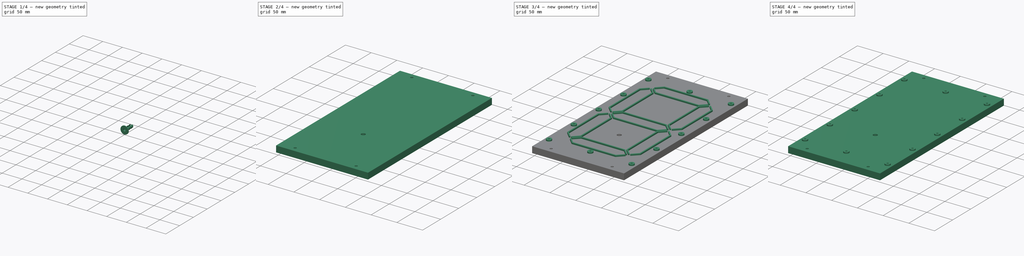
[diagram: build sequence overview — one tinted view per stage of 4, left to right]
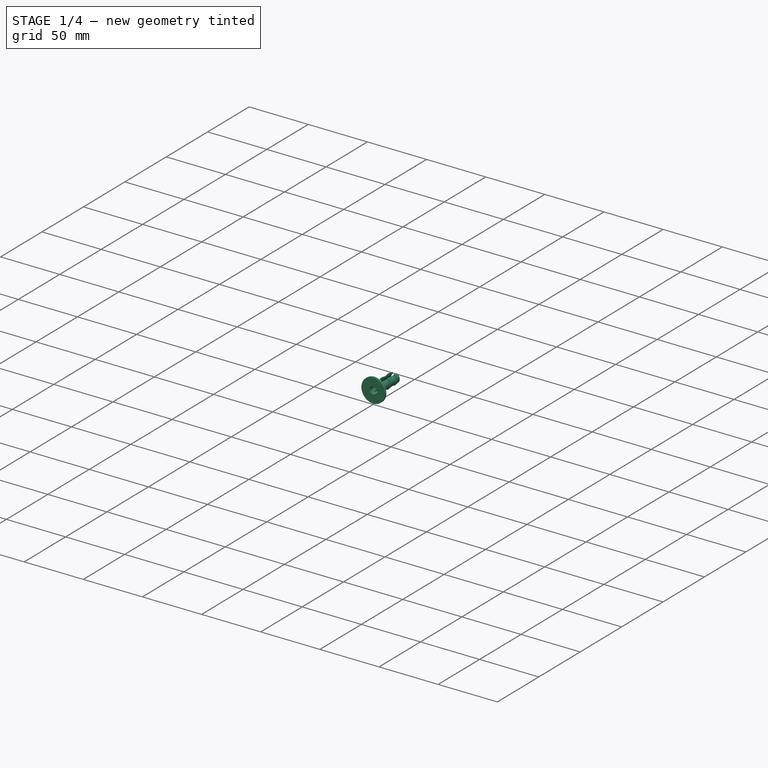
[diagram: stage 1 of 4 — iso view after this stage's code; geometry added in this stage tinted green]
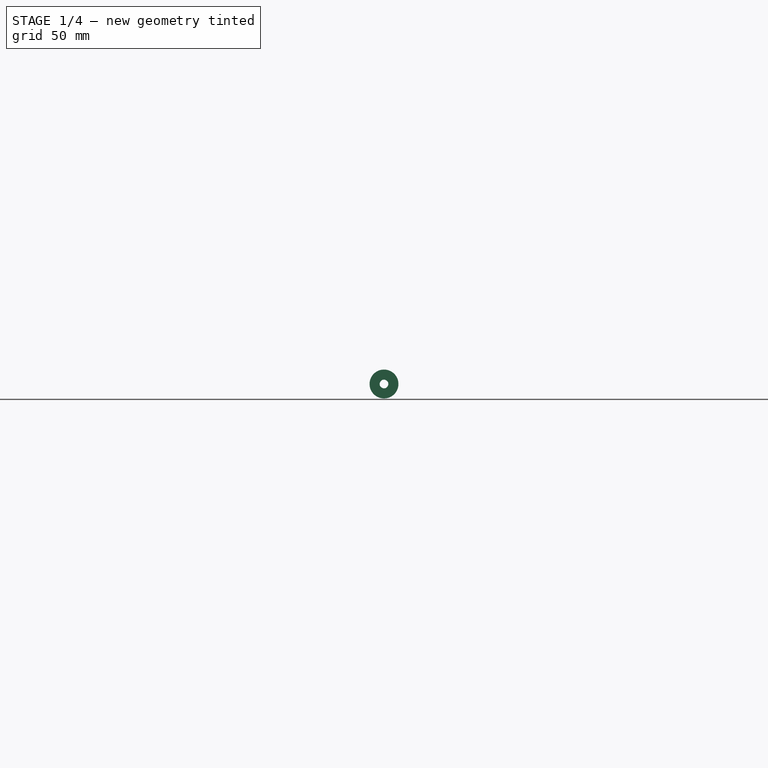
[diagram: stage 1 of 4 — front view after this stage's code; geometry added in this stage tinted green]
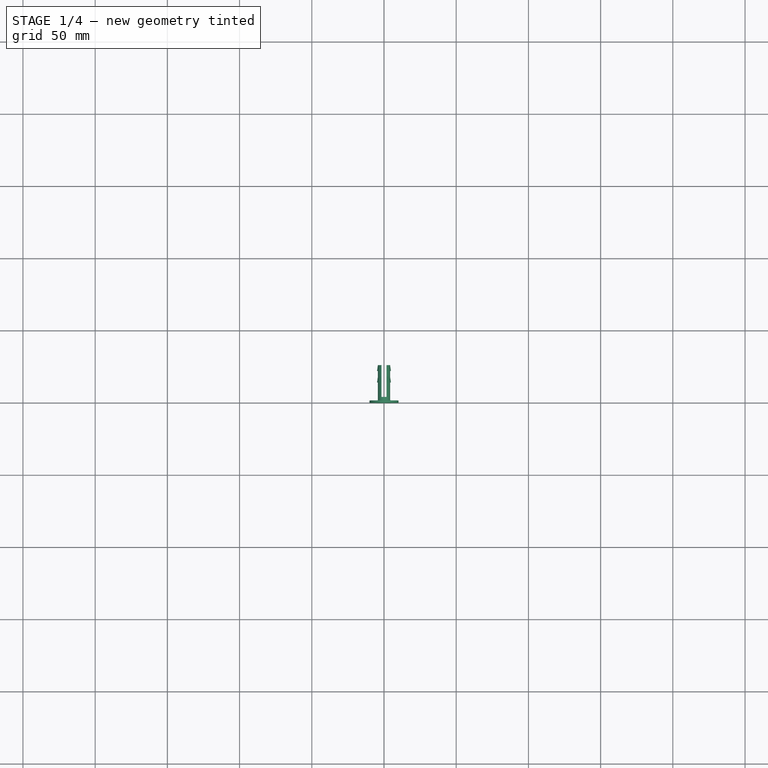
[diagram: stage 1 of 4 — top view after this stage's code; geometry added in this stage tinted green]
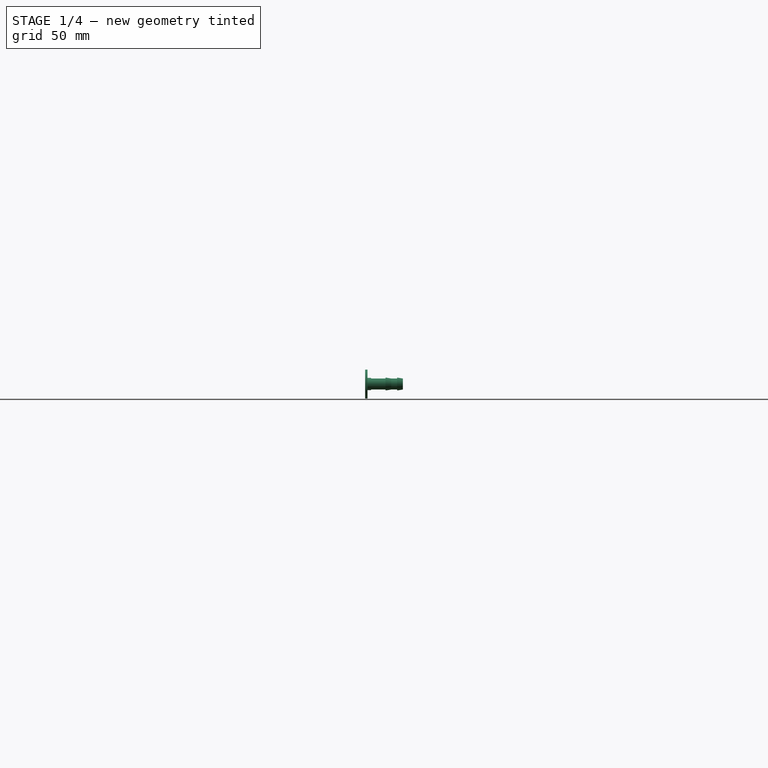
[diagram: stage 1 of 4 — right view after this stage's code; geometry added in this stage tinted green]
FCSTD DOCUMENT  (FreeCAD 0.19R24291 (Git))
Label: 7SegDigit
License: All rights reserved
LicenseURL: http://en.wikipedia.org/wiki/All_rights_reserved
objects: Sketcher::SketchObject×10, Part::Feature×7, PartDesign::Body×5, App::DocumentObjectGroup×4, PartDesign::Pad×4, PartDesign::Pocket×4, PartDesign::CoordinateSystem×1, App::FeaturePython×1, Spreadsheet::Sheet×1, PartDesign::Revolution×1, App::Part×1
note: 41 computed .brp shape members not serialized (recipe doc carries the construction recipe); baked Part::Feature solids carry a one-line shape summary decoded from their .brp

FEATURE [PartDesign::Body] Body017  label="BackPlate"
  Group = -> [Sketch009,Pad004]
  Origin = -> Origin019
  Placement = pos=(0,0,-12) rot=(0,0,1;0rad)
  Tip = -> Pad004
FEATURE [App::DocumentObjectGroup] Group  label="LEDs"
  Group = -> [Solid002,Solid,Solid001,Solid003,Solid004,Solid005,Solid006]
FEATURE [Sketcher::SketchObject] Sketch010
  FullyConstrained = true
  MapMode = 5
  Support = -> [XY_Plane020]
  sketch-geometry (11):
    g0: LineSegment StartX=3 StartY=0 StartZ=0 EndX=10 EndY=0 EndZ=0
    g1: LineSegment StartX=10 StartY=0 StartZ=0 EndX=10 EndY=1.6 EndZ=0
    g2: LineSegment StartX=10 StartY=1.6 StartZ=0 EndX=4.2 EndY=1.6 EndZ=0
    g3: LineSegment StartX=4.2 StartY=1.6 StartZ=0 EndX=4.2 EndY=14.1 EndZ=0
    g4: LineSegment StartX=4.2 StartY=14.1 StartZ=0 EndX=4.8 EndY=14.1 EndZ=0
    g5: LineSegment StartX=4.8 StartY=14.1 StartZ=0 EndX=4.2 EndY=18.1 EndZ=0
    g6: LineSegment StartX=4.2 StartY=18.1 StartZ=0 EndX=4.2 EndY=22.1 EndZ=0
    g7: LineSegment StartX=4.2 StartY=22.1 StartZ=0 EndX=4.8 EndY=22.1 EndZ=0
    g8: LineSegment StartX=4.8 StartY=22.1 StartZ=0 EndX=4.2 EndY=26.1 EndZ=0
    g9: LineSegment StartX=4.2 StartY=26.1 StartZ=0 EndX=3 EndY=26.1 EndZ=0
    g10: LineSegment StartX=3 StartY=26.1 StartZ=0 EndX=3 EndY=0 EndZ=0
  constraints (33):
    c: PointOnObject(g0,g-1)
    c: PointOnObject(g0,g-1)
    c: Coincident(g0,g1)
    c: Vertical(g1)
    c: Coincident(g1,g2)
    c: Horizontal(g2)
    c: Coincident(g2,g3)
    c: Vertical(g3)
    c: Coincident(g3,g4)
    c: Horizontal(g4)
    c: Coincident(g4,g5)
    c: Coincident(g5,g6)
    c: Vertical(g6)
    c: Coincident(g6,g7)
    c: Coincident(g7,g8)
    c: Coincident(g8,g9)
    c: Coincident(g9,g10)
    c: Coincident(g10,g0)
    c: Vertical(g10)
    c: DistanceY(g1,g1) = 1.6
    c: DistanceX(g-1,g0) = 10
    c: DistanceX(g0,g2) = 1.2
    c: Vertical(g3,g5)
    c: Vertical(g6,g8)
    c: Horizontal(g9,g8)
    c: Horizontal(g6,g7)
    c: Equal(g4,g7)
    c: Equal(g5,g8)
    c: DistanceY(g2,g3) = 12.5
    c: DistanceX(g4,g4) = 0.6
    c: DistanceY(g3,g5) = 4
    c: DistanceY(g6,g6) = 4
    c: DistanceX(g-1,g0) = 3
FEATURE [PartDesign::Revolution] Revolution
  Angle = 360
  Axis = (1e-16,1,-1e-16)
  Base = (0,0,0)
  Profile = -> Sketch010
  ReferenceAxis = -> Y_Axis020
  Reversed = true
FEATURE [Sketcher::SketchObject] Sketch011
  FullyConstrained = false
  MapMode = 5
  Placement = pos=(2.9e-15,26.1,-2.9e-15) rot=(0,0.707107,0.707107;3.14159rad)
  Support = -> [Revolution]
  sketch-geometry (8):
    g0: LineSegment StartX=-1.75 StartY=6 StartZ=0 EndX=1.75 EndY=6 EndZ=0
    g1: LineSegment StartX=1.75 StartY=6 StartZ=0 EndX=1.75 EndY=-6 EndZ=0
    g2: LineSegment StartX=1.75 StartY=-6 StartZ=0 EndX=-1.75 EndY=-6 EndZ=0
    g3: LineSegment StartX=-1.75 StartY=-6 StartZ=0 EndX=-1.75 EndY=6 EndZ=0
    g4: LineSegment StartX=-1.75 StartY=6 StartZ=0 EndX=-1.75 EndY=6 EndZ=0
    g5: LineSegment StartX=-1.75 StartY=6 StartZ=0 EndX=-1.75 EndY=6.14101 EndZ=0
    g6: LineSegment StartX=-1.75 StartY=6.14101 StartZ=0 EndX=-1.75 EndY=6.14101 EndZ=0
    g7: LineSegment StartX=-1.75 StartY=6.14101 StartZ=0 EndX=-1.75 EndY=6 EndZ=0
  constraints (21):
    c: Coincident(g0,g1)
    c: Coincident(g1,g2)
    c: Coincident(g2,g3)
    c: Coincident(g3,g0)
    c: Horizontal(g0)
    c: Horizontal(g2)
    c: Vertical(g1)
    c: Vertical(g3)
    c: Coincident(g4,g5)
    c: Coincident(g5,g6)
    c: Coincident(g6,g7)
    c: Coincident(g7,g4)
    c: Horizontal(g4)
    c: Horizontal(g6)
    c: Vertical(g5)
    c: Vertical(g7)
    c: Coincident(g4,g0)
    c: PointOnObject(g5,g3)
    c: Symmetric(g0,g1,g-1)
    c: DistanceY(g1,g1) = 12
    c: DistanceX(g0,g0) = 3.5
FEATURE [PartDesign::Pocket] Pocket003
  BaseFeature = -> Revolution
  Length = 22
  Length2 = 100
  Profile = -> Sketch011
  Type = 0
FEATURE [PartDesign::Body] Body018  label="StrainRelief"
  Group = -> [Sketch010,Revolution,Sketch011,Pocket003]
  Origin = -> Origin020
  Placement = pos=(0,-57.5,1.6) rot=(-1,0,0;1.5708rad)
  Tip = -> Pocket003
  expr: .Placement.Base.y = -Spreadsheet.SegmentCentreOffset
FEATURE [App::Part] Assembly
  AssemblyType = Part::Link
  Group = -> [LCS_Origin,Constraints,Configurations,Variables,Body,Body015,Body016,Body017,Solid002,Solid001,Solid004,Solid003,Solid005,Solid006,Solid,Group,Body018]
  Origin = -> Origin
  Type = Assembly
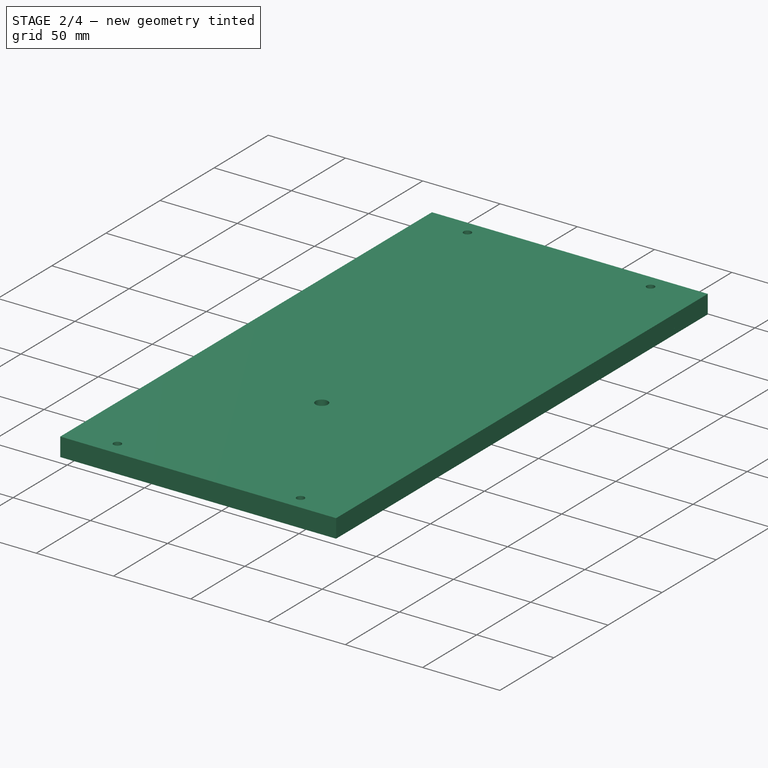
[diagram: stage 2 of 4 — iso view after this stage's code; geometry added in this stage tinted green]
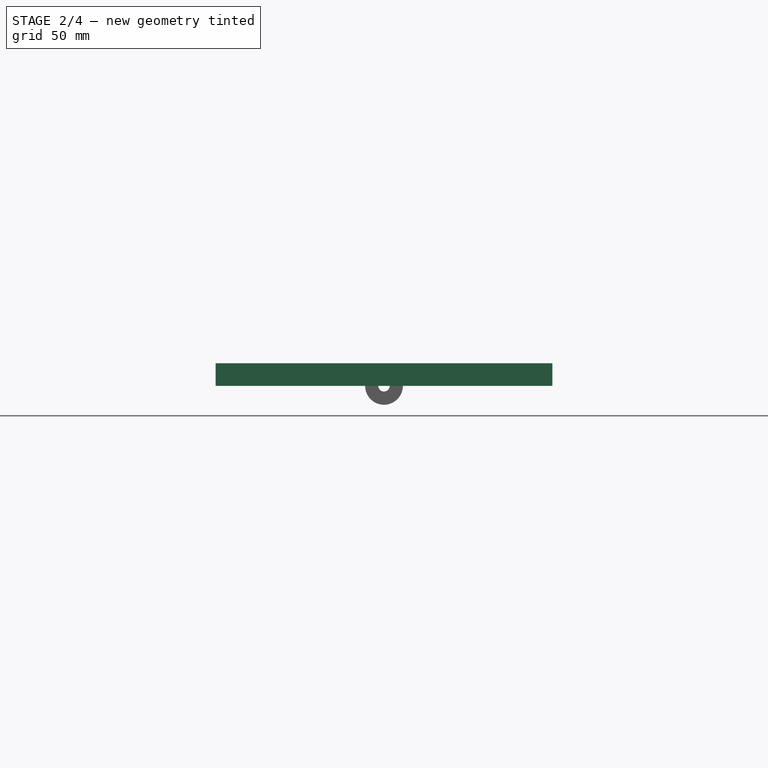
[diagram: stage 2 of 4 — front view after this stage's code; geometry added in this stage tinted green]
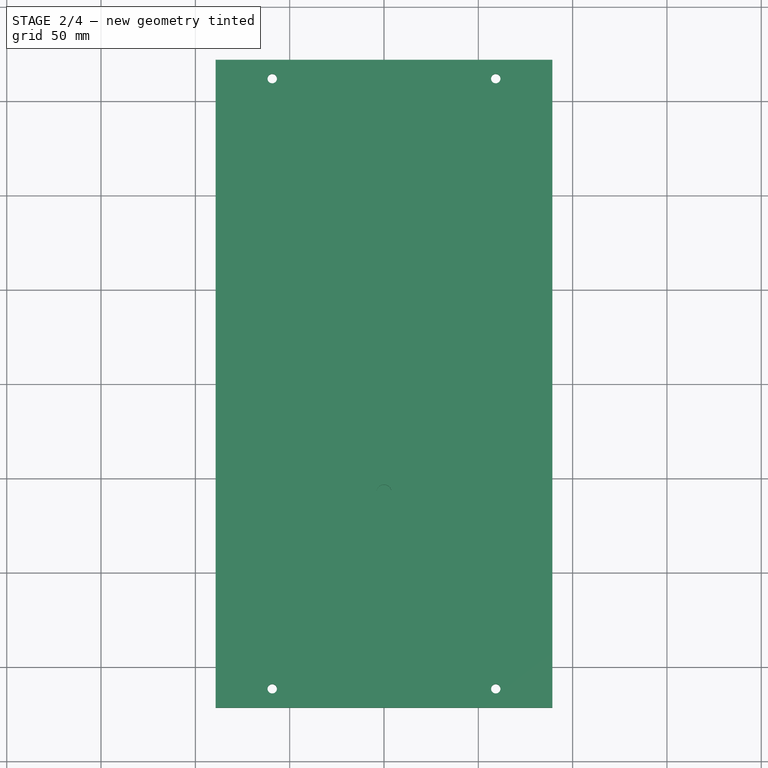
[diagram: stage 2 of 4 — top view after this stage's code; geometry added in this stage tinted green]
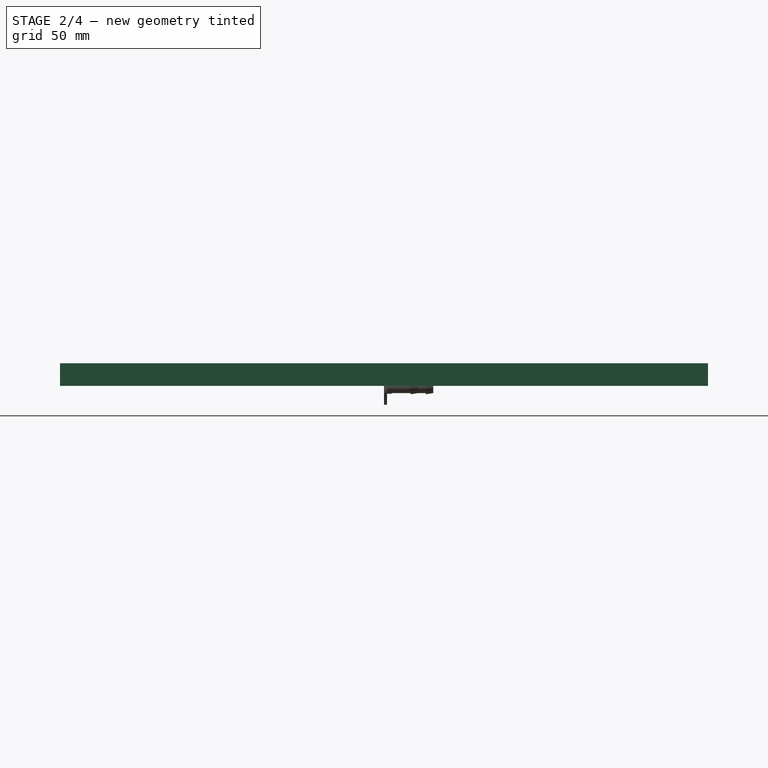
[diagram: stage 2 of 4 — right view after this stage's code; geometry added in this stage tinted green]
FEATURE [PartDesign::Body] Body  label="DigitBase"
  Group = -> [Sketch,Sketch004,Pad,Sketch005,Pocket,Sketch006,Pocket001]
  Origin = -> Origin017
  Tip = -> Pocket001
FEATURE [Sketcher::SketchObject] Sketch007  label="Face"
  FullyConstrained = true
  MapMode = 5
  Support = -> [XY_Plane018]
  expr: Constraints[140] = Spreadsheet.SegmentLength + Spreadsheet.SegmentWidth / 2 + Spreadsheet.DigitSegmentPadding + Spreadsheet.DigitPillarRadius
  expr: Constraints[139] = Spreadsheet.SegmentLength / 2 + Spreadsheet.SegmentWidth / 2 + Spreadsheet.DigitSegmentPadding + Spreadsheet.DigitPillarRadius
  expr: Constraints[136] = 2 * Spreadsheet.SegmentLength + Spreadsheet.SegmentWidth + 4 * Spreadsheet.DigitSegmentPadding + 4 * Spreadsheet.DigitPillarRadius
  expr: Constraints[135] = Spreadsheet.SegmentLength + Spreadsheet.SegmentWidth + 4 * Spreadsheet.DigitSegmentPadding + 4 * Spreadsheet.DigitPillarRadius
  expr: Constraints[23] = Spreadsheet.SegmentWidth
  expr: Constraints[22] = Spreadsheet.SegmentLength - Spreadsheet.DigitSegmentPadding - 2
  expr: Constraints[6] = Spreadsheet.SegmentLength
  expr: Constraints[2] = Spreadsheet.SegmentCentreOffset
  expr: Constraints[0] = Spreadsheet.SegmentCentreOffset
  sketch-geometry (76):
    g0: GeomPoint X=-57.5 Y=57.5 Z=0
    g1: GeomPoint X=0 Y=115 Z=0
    g2: GeomPoint X=57.5 Y=57.5 Z=0
    g3: GeomPoint X=-57.5 Y=-57.5 Z=0
    g4: GeomPoint X=0 Y=-115 Z=0
    g5: GeomPoint X=57.5 Y=-57.5 Z=0
    g6: LineSegment StartX=43.75 StartY=98.25 StartZ=0 EndX=57.5 EndY=112 EndZ=0
    g7: LineSegment StartX=57.5 StartY=112 StartZ=0 EndX=71.25 EndY=98.25 EndZ=0
    g8: LineSegment StartX=71.25 StartY=98.25 StartZ=0 EndX=71.25 EndY=16.75 EndZ=0
    g9: LineSegment StartX=71.25 StartY=16.75 StartZ=0 EndX=57.5 EndY=3.00001 EndZ=0
    g10: LineSegment StartX=57.5 StartY=3.00001 StartZ=0 EndX=43.75 EndY=16.75 EndZ=0
    g11: LineSegment StartX=43.75 StartY=16.75 StartZ=0 EndX=43.75 EndY=98.25 EndZ=0
    g12: LineSegment StartX=43.75 StartY=-16.75 StartZ=0 EndX=57.5 EndY=-2.99999 EndZ=0
    g13: LineSegment StartX=57.5 StartY=-2.99999 StartZ=0 EndX=71.25 EndY=-16.75 EndZ=0
    g14: LineSegment StartX=71.25 StartY=-16.75 StartZ=0 EndX=71.25 EndY=-98.25 EndZ=0
    g15: LineSegment StartX=71.25 StartY=-98.25 StartZ=0 EndX=57.5 EndY=-112 EndZ=0
    g16: LineSegment StartX=57.5 StartY=-112 StartZ=0 EndX=43.75 EndY=-98.25 EndZ=0
    g17: LineSegment StartX=43.75 StartY=-98.25 StartZ=0 EndX=43.75 EndY=-16.75 EndZ=0
    g18: LineSegment StartX=-54.5 StartY=-115 StartZ=0 EndX=-40.75 EndY=-101.25 EndZ=0
    g19: LineSegment StartX=-40.75 StartY=-101.25 StartZ=0 EndX=40.75 EndY=-101.25 EndZ=0
    g20: LineSegment StartX=40.75 StartY=-101.25 StartZ=0 EndX=54.5 EndY=-115 EndZ=0
    g21: LineSegment StartX=54.5 StartY=-115 StartZ=0 EndX=40.75 EndY=-128.75 EndZ=0
    g22: LineSegment StartX=40.75 StartY=-128.75 StartZ=0 EndX=-40.75 EndY=-128.75 EndZ=0
    g23: LineSegment StartX=-40.75 StartY=-128.75 StartZ=0 EndX=-54.5 EndY=-115 EndZ=0
    g24: LineSegment StartX=-57.5 StartY=-2.99999 StartZ=0 EndX=-71.25 EndY=-16.75 EndZ=0
    g25: LineSegment StartX=-71.25 StartY=-16.75 StartZ=0 EndX=-71.25 EndY=-98.25 EndZ=0
    g26: LineSegment StartX=-71.25 StartY=-98.25 StartZ=0 EndX=-57.5 EndY=-112 EndZ=0
    g27: LineSegment StartX=-57.5 StartY=-112 StartZ=0 EndX=-43.75 EndY=-98.25 EndZ=0
    g28: LineSegment StartX=-43.75 StartY=-98.25 StartZ=0 EndX=-43.75 EndY=-16.75 EndZ=0
    g29: LineSegment StartX=-43.75 StartY=-16.75 StartZ=0 EndX=-57.5 EndY=-2.99999 EndZ=0
    g30: LineSegment StartX=-57.5 StartY=2.99999 StartZ=0 EndX=-71.25 EndY=16.75 EndZ=0
    g31: LineSegment StartX=-71.25 StartY=16.75 StartZ=0 EndX=-71.25 EndY=98.25 EndZ=0
    g32: LineSegment StartX=-71.25 StartY=98.25 StartZ=0 EndX=-57.5 EndY=112 EndZ=0
    g33: LineSegment StartX=-57.5 StartY=112 StartZ=0 EndX=-43.75 EndY=98.25 EndZ=0
    g34: LineSegment StartX=-43.75 StartY=98.25 StartZ=0 EndX=-43.75 EndY=16.75 EndZ=0
    g35: LineSegment StartX=-43.75 StartY=16.75 StartZ=0 EndX=-57.5 EndY=2.99999 EndZ=0
    g36: LineSegment StartX=-54.5 StartY=115 StartZ=0 EndX=-40.75 EndY=101.25 EndZ=0
    g37: LineSegment StartX=-40.75 StartY=101.25 StartZ=0 EndX=40.75 EndY=101.25 EndZ=0
    g38: LineSegment StartX=40.75 StartY=101.25 StartZ=0 EndX=54.5 EndY=115 EndZ=0
    g39: LineSegment StartX=54.5 StartY=115 StartZ=0 EndX=40.75 EndY=128.75 EndZ=0
    g40: LineSegment StartX=40.75 StartY=128.75 StartZ=0 EndX=-40.75 EndY=128.75 EndZ=0
    g41: LineSegment StartX=-40.75 StartY=128.75 StartZ=0 EndX=-54.5 EndY=115 EndZ=0
    g42: LineSegment StartX=-54.5 StartY=0 StartZ=0 EndX=-40.75 EndY=13.75 EndZ=0
    g43: LineSegment StartX=-40.75 StartY=13.75 StartZ=0 EndX=40.75 EndY=13.75 EndZ=0
    g44: LineSegment StartX=40.75 StartY=13.75 StartZ=0 EndX=54.5 EndY=0 EndZ=0
    g45: LineSegment StartX=54.5 StartY=0 StartZ=0 EndX=40.75 EndY=-13.75 EndZ=0
    g46: LineSegment StartX=40.75 StartY=-13.75 StartZ=0 EndX=-40.75 EndY=-13.75 EndZ=0
    g47: LineSegment StartX=-40.75 StartY=-13.75 StartZ=0 EndX=-54.5 EndY=0 EndZ=0
    g48: LineSegment StartX=-89.25 StartY=146.75 StartZ=0 EndX=89.25 EndY=146.75 EndZ=0
    g49: LineSegment StartX=89.25 StartY=146.75 StartZ=0 EndX=89.25 EndY=-146.75 EndZ=0
    g50: LineSegment StartX=89.25 StartY=-146.75 StartZ=0 EndX=-89.25 EndY=-146.75 EndZ=0
    g51: LineSegment StartX=-89.25 StartY=-146.75 StartZ=0 EndX=-89.25 EndY=146.75 EndZ=0
    g52: Circle CenterX=-80.25 CenterY=137.75 CenterZ=0 NormalX=0 NormalY=0 NormalZ=1 AngleXU=0 Radius=1.75
    g53: Circle CenterX=-80.25 CenterY=68.875 CenterZ=0 NormalX=0 NormalY=0 NormalZ=1 AngleXU=0 Radius=1.75
    g54: Circle CenterX=-80.25 CenterY=0 CenterZ=0 NormalX=0 NormalY=0 NormalZ=1 AngleXU=0 Radius=1.75
    g55: GeomPoint X=-80.25 Y=0 Z=0
    g56: GeomPoint X=80.25 Y=0 Z=0
    g57: GeomPoint X=-80.25 Y=68.875 Z=0
    g58: GeomPoint X=-80.25 Y=137.75 Z=0
    g59: GeomPoint X=80.25 Y=137.75 Z=0
    g60: GeomPoint X=-6.5e-15 Y=137.75 Z=0
    g61: GeomPoint X=80.25 Y=68.875 Z=0
    g62: GeomPoint X=-80.25 Y=-137.75 Z=0
    g63: GeomPoint X=-80.25 Y=-68.875 Z=0
    g64: GeomPoint X=-3.4e-15 Y=-137.75 Z=0
    g65: GeomPoint X=80.25 Y=-137.75 Z=0
    g66: GeomPoint X=80.25 Y=-68.875 Z=0
    g67: Circle CenterX=-6.5e-15 CenterY=137.75 CenterZ=0 NormalX=0 NormalY=0 NormalZ=1 AngleXU=0 Radius=1.75
    g68: Circle CenterX=80.25 CenterY=0 CenterZ=0 NormalX=0 NormalY=0 NormalZ=1 AngleXU=0 Radius=1.75
    g69: Circle CenterX=80.25 CenterY=-137.75 CenterZ=0 NormalX=0 NormalY=0 NormalZ=1 AngleXU=0 Radius=1.75
    g70: Circle CenterX=80.25 CenterY=137.75 CenterZ=0 NormalX=0 NormalY=0 NormalZ=1 AngleXU=0 Radius=1.75
    g71: Circle CenterX=80.25 CenterY=68.875 CenterZ=0 NormalX=0 NormalY=0 NormalZ=1 AngleXU=0 Radius=1.75
    g72: Circle CenterX=-3.4e-15 CenterY=-137.75 CenterZ=0 NormalX=0 NormalY=0 NormalZ=1 AngleXU=0 Radius=1.75
    g73: Circle CenterX=-80.25 CenterY=-68.875 CenterZ=0 NormalX=0 NormalY=0 NormalZ=1 AngleXU=0 Radius=1.75
    g74: Circle CenterX=80.25 CenterY=-68.875 CenterZ=0 NormalX=0 NormalY=0 NormalZ=1 AngleXU=0 Radius=1.75
    g75: Circle CenterX=-80.25 CenterY=-137.75 CenterZ=0 NormalX=0 NormalY=0 NormalZ=1 AngleXU=0 Radius=1.75
  constraints (177):
    c: DistanceY(g5,g-1) = 57.5
    c: Symmetric(g2,g5,g-1)
    c: DistanceX(g-1,g5) = 57.5
    c: Symmetric(g3,g5,g-2)
    c: Symmetric(g0,g3,g-1)
    c: Vertical(g1,g-1)
    c: DistanceY(g4,g-1) = 115
    c: Symmetric(g4,g1,g-1)
    c: Coincident(g6,g7)
    c: Coincident(g7,g8)
    c: Vertical(g8)
    c: Coincident(g8,g9)
    c: Coincident(g9,g10)
    c: Coincident(g10,g11)
    c: Coincident(g11,g6)
    c: Vertical(g11)
    c: Equal(g7,g6)
    c: Equal(g6,g10)
    c: Equal(g10,g9)
    c: Perpendicular(g7,g6)
    c: Perpendicular(g9,g10)
    c: Symmetric(g6,g8,g2)
    c: DistanceY(g9,g6) = 109
    c: DistanceX(g6,g7) = 27.5
    c: Coincident(g12,g13)
    c: Coincident(g13,g14)
    c: Vertical(g14)
    c: Coincident(g14,g15)
    c: Coincident(g15,g16)
    c: Coincident(g16,g17)
    c: Coincident(g17,g12)
    c: Equal(g13,g12)
    c: Equal(g12,g16)
    c: Equal(g16,g15)
    c: Equal(g15,g6)
    c: Equal(g17,g8)
    c: Perpendicular(g13,g12)
    c: Symmetric(g12,g14,g5)
    c: Symmetric(g13,g16,g5)
    c: Horizontal(g12,g13)
    c: Horizontal(g6,g7)
    c: Coincident(g18,g19)
    c: Horizontal(g19)
    c: Coincident(g19,g20)
    c: Coincident(g20,g21)
    c: Coincident(g21,g22)
    c: Horizontal(g22)
    c: Coincident(g22,g23)
    c: Coincident(g23,g18)
    c: Equal(g18,g23)
    c: Equal(g23,g21)
    c: Equal(g21,g20)
    c: Equal(g20,g16)
    c: Equal(g19,g22)
    c: Equal(g22,g14)
    c: Perpendicular(g18,g23)
    c: Vertical(g18,g22)
    c: Symmetric(g18,g21,g4)
    c: Coincident(g24,g25)
    c: Vertical(g25)
    c: Coincident(g25,g26)
    c: Coincident(g26,g27)
    c: Coincident(g27,g28)
    c: Vertical(g28)
    c: Coincident(g28,g29)
    c: Coincident(g29,g24)
    c: Perpendicular(g27,g26)
    c: Equal(g27,g26)
    c: Equal(g26,g18)
    c: Equal(g24,g29)
    c: Equal(g29,g26)
    c: Equal(g25,g28)
    c: Equal(g28,g19)
    c: Symmetric(g24,g27,g3)
    c: Horizontal(g28,g24)
    c: Coincident(g30,g31)
    c: Vertical(g31)
    c: Coincident(g31,g32)
    c: Coincident(g32,g33)
    c: Coincident(g33,g34)
    c: Vertical(g34)
    c: Coincident(g34,g35)
    c: Coincident(g35,g30)
    c: Perpendicular(g33,g32)
    c: Equal(g32,g33)
    c: Equal(g33,g35)
    c: Equal(g35,g30)
    c: Equal(g30,g24)
    c: Equal(g31,g34)
    c: Equal(g34,g28)
    c: Symmetric(g31,g34,g0)
    c: Horizontal(g31,g33)
    c: Coincident(g36,g37)
    c: Horizontal(g37)
    c: Coincident(g37,g38)
    c: Coincident(g38,g39)
    c: Coincident(g39,g40)
    c: Horizontal(g40)
    c: Coincident(g40,g41)
    c: Coincident(g41,g36)
    c: Coincident(g42,g43)
    c: Horizontal(g43)
    c: Coincident(g43,g44)
    c: Coincident(g44,g45)
    c: Coincident(g45,g46)
    c: Horizontal(g46)
    c: Coincident(g46,g47)
    c: Coincident(g47,g42)
    c: Equal(g41,g36)
    c: Equal(g36,g42)
    c: Equal(g42,g47)
    c: Equal(g47,g44)
    c: Equal(g44,g45)
    c: Equal(g45,g38)
    c: Equal(g38,g39)
    c: Equal(g39,g33)
    c: Equal(g40,g37)
    c: Equal(g37,g43)
    c: Equal(g43,g46)
    c: Perpendicular(g36,g41)
    c: Vertical(g36,g40)
    c: Perpendicular(g47,g42)
    c: Vertical(g42,g46)
    c: Symmetric(g40,g37,g1)
    c: Symmetric(g42,g45,g-1)
    c: Equal(g43,g11)
    c: Coincident(g48,g49)
    c: Coincident(g49,g50)
    c: Coincident(g50,g51)
    c: Coincident(g51,g48)
    c: Horizontal(g48)
    c: Horizontal(g50)
    c: Vertical(g49)
    c: Vertical(g51)
    c: Symmetric(g48,g49,g-1)
    c: DistanceX(g50,g50) = 178.5
    c: DistanceY(g49,g49) = 293.5
    c: Horizontal(g55,g-1)
    c: Symmetric(g55,g56,g-1)
    c: DistanceX(g55,g-1) = 80.25
    c: DistanceY(g55,g58) = 137.75
    c: Vertical(g57,g58)
    c: Symmetric(g58,g55,g57)
    c: Symmetric(g59,g58,g60)
    c: Symmetric(g59,g58,g-2)
    c: Symmetric(g59,g56,g61)
    c: Horizontal(g62,g64)
    c: Vertical(g62,g63)
    c: Vertical(g63,g55)
    c: Symmetric(g61,g66,g-1)
    c: Symmetric(g65,g58,g-1)
    c: Horizontal(g63,g66)
    c: Symmetric(g62,g65,g64)
    c: Equal(g74,g75)
    c: Equal(g75,g71)
    c: Equal(g71,g70)
    c: Equal(g70,g67)
    c: Equal(g67,g68)
    c: Equal(g68,g72)
    c: Equal(g72,g69)
    c: Equal(g69,g73)
    c: Equal(g73,g54)
    c: Equal(g54,g53)
    c: Equal(g53,g52)
    c: Coincident(g58,g52)
    c: Coincident(g53,g57)
    c: Coincident(g54,g55)
    c: Coincident(g63,g73)
    c: Coincident(g75,g62)
    c: Coincident(g72,g64)
    c: Coincident(g69,g65)
    c: Coincident(g74,g66)
    c: Coincident(g68,g56)
    c: Coincident(g71,g61)
    c: Coincident(g60,g67)
    c: Coincident(g70,g59)
    c: Radius(g52) = 1.75
FEATURE [PartDesign::Pad] Pad003  label="PadFace"
  Direction = (1,1,1)
  Length = 3.6
  Length2 = 100
  Profile = -> Sketch007
  Type = 0
FEATURE [PartDesign::Body] Body016  label="DigitFace"
  Group = -> [Sketch007,Pad003,Sketch008,Pocket002]
  Origin = -> Origin018
  Placement = pos=(0,0,12.61) rot=(0,0,1;0rad)
  Tip = -> Pocket002
FEATURE [Sketcher::SketchObject] Sketch009  label="BackPlateS"
  FullyConstrained = true
  MapMode = 5
  Support = -> [XY_Plane019]
  expr: Constraints[21] = Spreadsheet.SegmentCentreOffset
  expr: Constraints[9] = 2 * Spreadsheet.SegmentLength + Spreadsheet.SegmentWidth + 4 * Spreadsheet.DigitSegmentPadding + 4 * Spreadsheet.DigitPillarRadius + 50
  expr: Constraints[8] = Spreadsheet.SegmentLength + Spreadsheet.SegmentWidth + 4 * Spreadsheet.DigitSegmentPadding + 4 * Spreadsheet.DigitPillarRadius
  sketch-geometry (9):
    g0: LineSegment StartX=-89.25 StartY=171.75 StartZ=0 EndX=89.25 EndY=171.75 EndZ=0
    g1: LineSegment StartX=89.25 StartY=171.75 StartZ=0 EndX=89.25 EndY=-171.75 EndZ=0
    g2: LineSegment StartX=89.25 StartY=-171.75 StartZ=0 EndX=-89.25 EndY=-171.75 EndZ=0
    g3: LineSegment StartX=-89.25 StartY=-171.75 StartZ=0 EndX=-89.25 EndY=171.75 EndZ=0
    g4: Circle CenterX=-59.25 CenterY=161.75 CenterZ=0 NormalX=0 NormalY=0 NormalZ=1 AngleXU=0 Radius=2.5
    g5: Circle CenterX=59.25 CenterY=161.75 CenterZ=0 NormalX=0 NormalY=0 NormalZ=1 AngleXU=0 Radius=2.5
    g6: Circle CenterX=-59.25 CenterY=-161.75 CenterZ=0 NormalX=0 NormalY=0 NormalZ=1 AngleXU=0 Radius=2.5
    g7: Circle CenterX=59.25 CenterY=-161.75 CenterZ=0 NormalX=0 NormalY=0 NormalZ=1 AngleXU=0 Radius=2.5
    g8: Circle CenterX=0 CenterY=-57.5 CenterZ=0 NormalX=0 NormalY=0 NormalZ=1 AngleXU=0 Radius=4
  constraints (22):
    c: Coincident(g0,g1)
    c: Coincident(g1,g2)
    c: Coincident(g2,g3)
    c: Coincident(g3,g0)
    c: Horizontal(g0)
    c: Vertical(g3)
    c: Symmetric(g1,g2,g-2)
    c: Symmetric(g0,g1,g-1)
    c: DistanceX(g0,g0) = 178.5
    c: DistanceY(g1,g1) = 343.5
    c: Equal(g4,g5)
    c: Equal(g5,g6)
    c: Equal(g6,g7)
    c: Symmetric(g4,g5,g-2)
    c: Symmetric(g7,g6,g-2)
    c: Symmetric(g4,g6,g-1)
    c: DistanceX(g0,g4) = 30
    c: DistanceY(g4,g0) = 10
    c: Radius(g4) = 2.5
    c: Radius(g8) = 4
    c: Vertical(g8,g-1)
    c: DistanceY(g8,g-1) = 57.5
FEATURE [PartDesign::Pad] Pad004  label="PadBackPlate"
  Direction = (1,1,1)
  Length = 12
  Length2 = 100
  Profile = -> Sketch009
  Type = 0
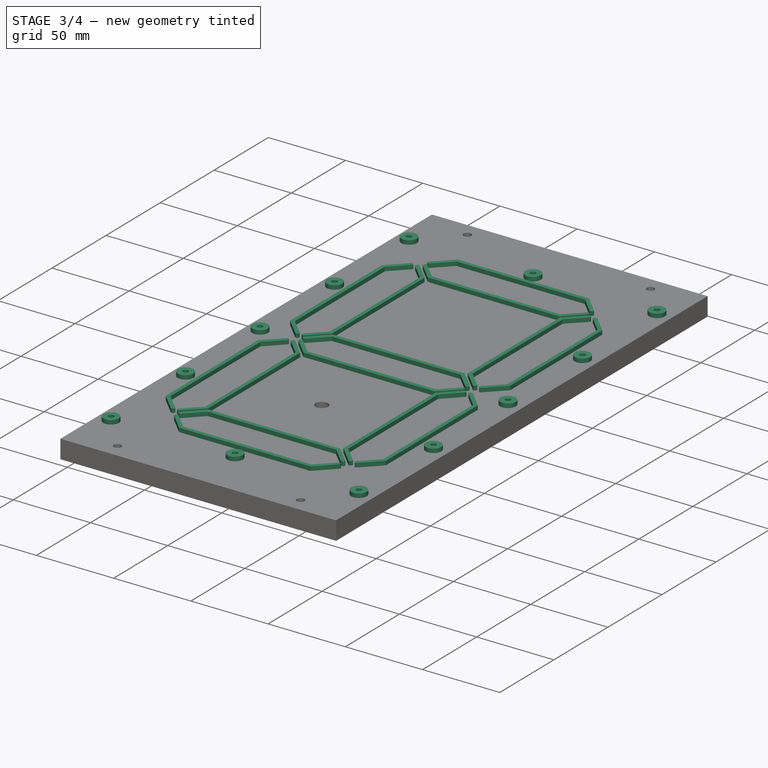
[diagram: stage 3 of 4 — iso view after this stage's code; geometry added in this stage tinted green]
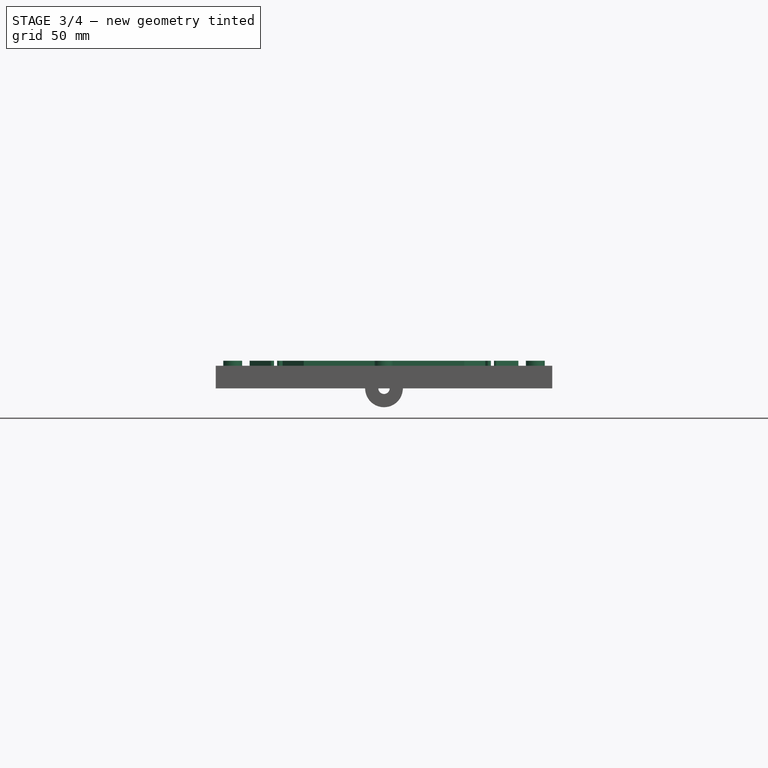
[diagram: stage 3 of 4 — front view after this stage's code; geometry added in this stage tinted green]
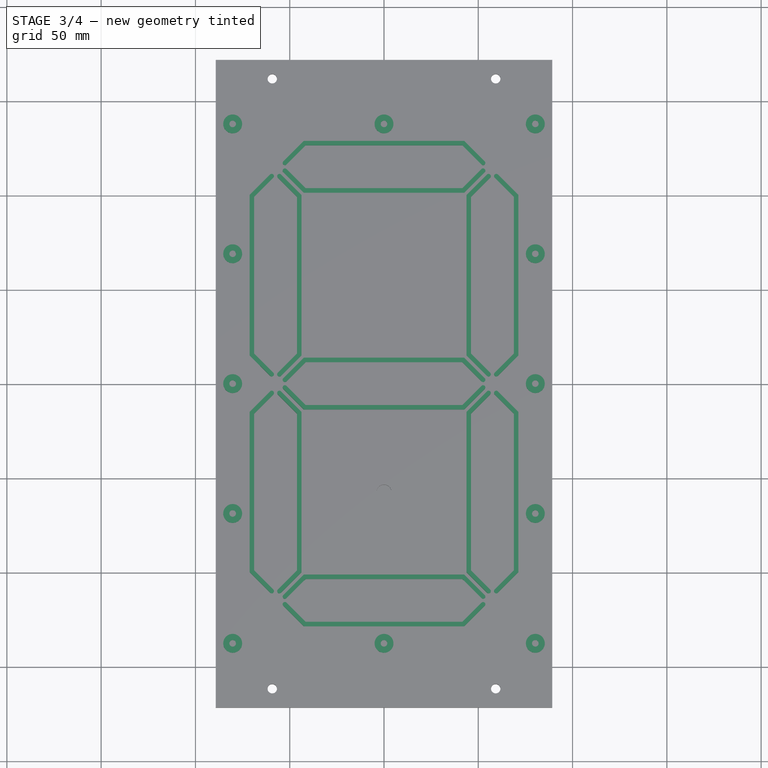
[diagram: stage 3 of 4 — top view after this stage's code; geometry added in this stage tinted green]
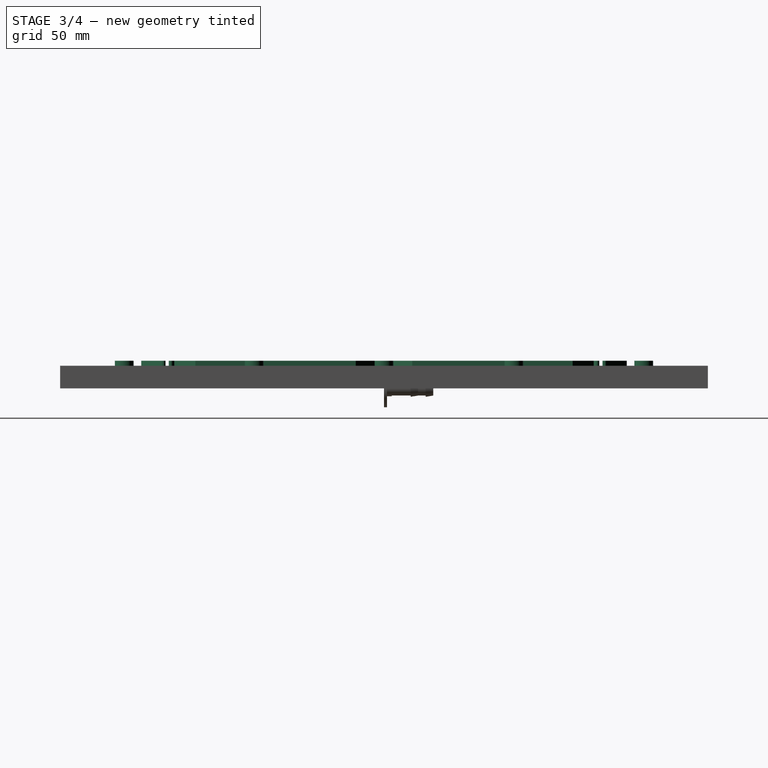
[diagram: stage 3 of 4 — right view after this stage's code; geometry added in this stage tinted green]
FEATURE [PartDesign::Body] Body015  label="Diffuser"
  Group = -> [Sketch003,Pad002]
  Origin = -> Origin016
  Placement = pos=(0,0,11.6) rot=(0,0,1;0rad)
  Tip = -> Pad002
FEATURE [Sketcher::SketchObject] Sketch  label="Template"
  FullyConstrained = true
  MapMode = 5
  Support = -> [XY_Plane017]
  expr: Constraints[4] = Spreadsheet.LedHoleCentreOffset
  expr: Constraints[5] = Spreadsheet.SegmentCentreOffset
  expr: Constraints[39] = Spreadsheet.SegmentLength + Spreadsheet.SegmentWidth / 2 + Spreadsheet.DigitPillarRadius + Spreadsheet.DigitSegmentPadding
  expr: Constraints[15] = Spreadsheet.LedHoleCentreOffset
  expr: Constraints[34] = (Spreadsheet.SegmentLength + Spreadsheet.SegmentWidth) / 2 + Spreadsheet.DigitPillarRadius + Spreadsheet.DigitSegmentPadding
  expr: Constraints[0] = Spreadsheet.SegmentLength / 2
  expr: Constraints[13] = Spreadsheet.SegmentLength
  expr: Constraints[40] = (Spreadsheet.SegmentLength + Spreadsheet.SegmentWidth / 2 + Spreadsheet.DigitPillarRadius + Spreadsheet.DigitSegmentPadding) / 2
  sketch-geometry (34):
    g0: GeomPoint X=-57.5 Y=99 Z=0
    g1: GeomPoint X=-57.5 Y=16 Z=0
    g2: GeomPoint X=-57.5 Y=-16 Z=0
    g3: GeomPoint X=-57.5 Y=-99 Z=0
    g4: GeomPoint X=-57.5 Y=57.5 Z=0
    g5: GeomPoint X=-57.5 Y=-57.5 Z=0
    g6: GeomPoint X=57.5 Y=99 Z=0
    g7: GeomPoint X=57.5 Y=57.5 Z=0
    g8: GeomPoint X=57.5 Y=16 Z=0
    g9: GeomPoint X=57.5 Y=-16 Z=0
    g10: GeomPoint X=57.5 Y=-57.5 Z=0
    g11: GeomPoint X=57.5 Y=-99 Z=0
    g12: GeomPoint X=41.5 Y=115 Z=0
    g13: GeomPoint X=-41.5 Y=115 Z=0
    g14: GeomPoint X=-41.5 Y=-115 Z=0
    g15: GeomPoint X=41.5 Y=-115 Z=0
    g16: GeomPoint X=-41.5 Y=0 Z=0
    g17: GeomPoint X=41.5 Y=0 Z=0
    g18: GeomPoint X=0 Y=115 Z=0
    g19: GeomPoint X=0 Y=57.5 Z=0
    g20: GeomPoint X=0 Y=-57.5 Z=0
    g21: GeomPoint X=0 Y=-115 Z=0
    g22: GeomPoint X=-80.25 Y=-137.75 Z=0
    g23: GeomPoint X=0 Y=-137.75 Z=0
    g24: GeomPoint X=80.25 Y=-137.75 Z=0
    g25: GeomPoint X=80.25 Y=-68.875 Z=0
    g26: GeomPoint X=80.25 Y=0 Z=0
    g27: GeomPoint X=80.25 Y=68.875 Z=0
    g28: GeomPoint X=80.25 Y=137.75 Z=0
    g29: GeomPoint X=0 Y=137.75 Z=0
    g30: GeomPoint X=-80.25 Y=137.75 Z=0
    g31: GeomPoint X=-80.25 Y=68.875 Z=0
    g32: GeomPoint X=-80.25 Y=0 Z=0
    g33: GeomPoint X=-80.25 Y=-68.875 Z=0
  constraints (46):
    c: DistanceX(g0,g-1) = 57.5
    c: Vertical(g1,g0)
    c: Symmetric(g2,g1,g-1)
    c: Symmetric(g3,g0,g-1)
    c: DistanceY(g4,g0) = 41.5
    c: DistanceY(g-1,g4) = 57.5
    c: Symmetric(g5,g4,g-1)
    c: Symmetric(g6,g0,g-2)
    c: Symmetric(g7,g4,g-2)
    c: Symmetric(g8,g1,g-2)
    c: Symmetric(g9,g2,g-2)
    c: Symmetric(g10,g5,g-2)
    c: Symmetric(g11,g3,g-2)
    c: DistanceY(g-1,g12) = 115
    c: Symmetric(g12,g13,g-2)
    c: DistanceX(g12) = 41.5
    c: Symmetric(g15,g13,g-1)
    c: Symmetric(g12,g14,g-1)
    c: PointOnObject(g16,g-1)
    c: PointOnObject(g17,g-1)
    c: Vertical(g17,g12)
    c: Vertical(g16,g13)
    c: Horizontal(g18,g12)
    c: Vertical(g18,g-1)
    c: PointOnObject(g20,g-2)
    c: Horizontal(g19,g7)
    c: Symmetric(g19,g20,g-1)
    c: Symmetric(g21,g18,g-1)
    c: Symmetric(g0,g1,g4)
    c: PointOnObject(g23,g-2)
    c: PointOnObject(g26,g-1)
    c: PointOnObject(g29,g-2)
    c: Horizontal(g24,g23)
    c: Symmetric(g24,g22,g23)
    c: DistanceX(g22,g-1) = 80.25
    c: Vertical(g33,g32)
    c: Vertical(g31,g30)
    c: Symmetric(g30,g22,g-1)
    c: Symmetric(g31,g33,g-1)
    c: DistanceY(g22,g32) = 137.75
    c: DistanceY(g22,g33) = 68.875
    c: Symmetric(g25,g33,g-2)
    c: Symmetric(g26,g32,g-2)
    c: Symmetric(g27,g31,g-2)
    c: Symmetric(g28,g30,g-2)
    c: Horizontal(g29,g28)
FEATURE [Sketcher::SketchObject] Sketch004  label="Bottom"
  FullyConstrained = true
  MapMode = 5
  Support = -> [XY_Plane017]
  expr: Constraints[215] = Spreadsheet.DigitPillarRadius * 2 + Spreadsheet.DigitSegmentPadding
  expr: Constraints[0] = Sketch.Constraints[0]
  expr: Constraints[34] = Sketch.Constraints[34]
  expr: Constraints[308] = Spreadsheet.SegmentWidth / 2
  expr: Constraints[13] = Sketch.Constraints[13]
  expr: Constraints[40] = Sketch.Constraints[40]
  expr: Constraints[5] = Sketch.Constraints[5]
  expr: Constraints[39] = Sketch.Constraints[39]
  expr: Constraints[4] = Sketch.Constraints[4]
  expr: Constraints[198] = (Spreadsheet.DigitPillarRadius + Spreadsheet.DigitSegmentPadding) * 2
  expr: Constraints[15] = Sketch.Constraints[15]
  expr: Constraints[307] = (Spreadsheet.LedHoleCentreOffset - Spreadsheet.DigitSegmentPadding) * 2 - 7
  sketch-geometry (148):
    g0: GeomPoint X=-57.5 Y=99 Z=0
    g1: GeomPoint X=-57.5 Y=16 Z=0
    g2: GeomPoint X=-57.5 Y=-16 Z=0
    g3: GeomPoint X=-57.5 Y=-99 Z=0
    g4: GeomPoint X=-57.5 Y=57.5 Z=0
    g5: GeomPoint X=-57.5 Y=-57.5 Z=0
    g6: GeomPoint X=57.5 Y=99 Z=0
    g7: GeomPoint X=57.5 Y=57.5 Z=0
    g8: GeomPoint X=57.5 Y=16 Z=0
    g9: GeomPoint X=57.5 Y=-16 Z=0
    g10: GeomPoint X=57.5 Y=-57.5 Z=0
    g11: GeomPoint X=57.5 Y=-99 Z=0
    g12: GeomPoint X=41.5 Y=115 Z=0
    g13: GeomPoint X=-41.5 Y=115 Z=0
    g14: GeomPoint X=-41.5 Y=-115 Z=0
    g15: GeomPoint X=41.5 Y=-115 Z=0
    g16: GeomPoint X=-41.5 Y=0 Z=0
    g17: GeomPoint X=41.5 Y=0 Z=0
    g18: GeomPoint X=0 Y=115 Z=0
    g19: GeomPoint X=0 Y=57.5 Z=0
    g20: GeomPoint X=0 Y=-57.5 Z=0
    g21: GeomPoint X=0 Y=-115 Z=0
    g22: GeomPoint X=-80.25 Y=-137.75 Z=0
    g23: GeomPoint X=0 Y=-137.75 Z=0
    g24: GeomPoint X=80.25 Y=-137.75 Z=0
    g25: GeomPoint X=80.25 Y=-68.875 Z=0
    g26: GeomPoint X=80.25 Y=0 Z=0
    g27: GeomPoint X=80.25 Y=68.875 Z=0
    g28: GeomPoint X=80.25 Y=137.75 Z=0
    g29: GeomPoint X=0 Y=137.75 Z=0
    g30: GeomPoint X=-80.25 Y=137.75 Z=0
    g31: GeomPoint X=-80.25 Y=68.875 Z=0
    g32: GeomPoint X=-80.25 Y=0 Z=0
    g33: GeomPoint X=-80.25 Y=-68.875 Z=0
    g34: Circle CenterX=-80.25 CenterY=137.75 CenterZ=0 NormalX=0 NormalY=0 NormalZ=1 AngleXU=0 Radius=1.75
    g35: Circle CenterX=57.5 CenterY=99 CenterZ=0 NormalX=0 NormalY=0 NormalZ=1 AngleXU=0 Radius=1.75
    g36: Circle CenterX=80.25 CenterY=68.875 CenterZ=0 NormalX=0 NormalY=0 NormalZ=1 AngleXU=0 Radius=1.75
    g37: Circle CenterX=57.5 CenterY=16 CenterZ=0 NormalX=0 NormalY=0 NormalZ=1 AngleXU=0 Radius=1.75
    g38: Circle CenterX=80.25 CenterY=0 CenterZ=0 NormalX=0 NormalY=0 NormalZ=1 AngleXU=0 Radius=1.75
    g39: Circle CenterX=57.5 CenterY=-16 CenterZ=0 NormalX=0 NormalY=0 NormalZ=1 AngleXU=0 Radius=1.75
    g40: Circle CenterX=-41.5 CenterY=115 CenterZ=0 NormalX=0 NormalY=0 NormalZ=1 AngleXU=0 Radius=1.75
    g41: Circle CenterX=80.25 CenterY=137.75 CenterZ=0 NormalX=0 NormalY=0 NormalZ=1 AngleXU=0 Radius=1.75
    g42: Circle CenterX=-41.5 CenterY=-115 CenterZ=0 NormalX=0 NormalY=0 NormalZ=1 AngleXU=0 Radius=1.75
    g43: Circle CenterX=0 CenterY=-137.75 CenterZ=0 NormalX=0 NormalY=0 NormalZ=1 AngleXU=0 Radius=1.75
    g44: Circle CenterX=80.25 CenterY=-137.75 CenterZ=0 NormalX=0 NormalY=0 NormalZ=1 AngleXU=0 Radius=1.75
    g45: Circle CenterX=80.25 CenterY=-68.875 CenterZ=0 NormalX=0 NormalY=0 NormalZ=1 AngleXU=0 Radius=1.75
    g46: Circle CenterX=0 CenterY=137.75 CenterZ=0 NormalX=0 NormalY=0 NormalZ=1 AngleXU=0 Radius=1.75
    g47: Circle CenterX=-80.25 CenterY=-68.875 CenterZ=0 NormalX=0 NormalY=0 NormalZ=1 AngleXU=0 Radius=1.75
    g48: Circle CenterX=-80.25 CenterY=-137.75 CenterZ=0 NormalX=0 NormalY=0 NormalZ=1 AngleXU=0 Radius=1.75
    g49: Circle CenterX=-57.5 CenterY=-99 CenterZ=0 NormalX=0 NormalY=0 NormalZ=1 AngleXU=0 Radius=1.75
    g50: Circle CenterX=41.5 CenterY=-115 CenterZ=0 NormalX=0 NormalY=0 NormalZ=1 AngleXU=0 Radius=1.75
    g51: Circle CenterX=57.5 CenterY=-99 CenterZ=0 NormalX=0 NormalY=0 NormalZ=1 AngleXU=0 Radius=1.75
    g52: Circle CenterX=-57.5 CenterY=-16 CenterZ=0 NormalX=0 NormalY=0 NormalZ=1 AngleXU=0 Radius=1.75
    g53: Circle CenterX=-80.25 CenterY=0 CenterZ=0 NormalX=0 NormalY=0 NormalZ=1 AngleXU=0 Radius=1.75
    g54: Circle CenterX=-80.25 CenterY=68.875 CenterZ=0 NormalX=0 NormalY=0 NormalZ=1 AngleXU=0 Radius=1.75
    g55: Circle CenterX=-57.5 CenterY=99 CenterZ=0 NormalX=0 NormalY=0 NormalZ=1 AngleXU=0 Radius=1.75
    g56: Circle CenterX=41.5 CenterY=115 CenterZ=0 NormalX=0 NormalY=0 NormalZ=1 AngleXU=0 Radius=1.75
    g57: Circle CenterX=-41.5 CenterY=0 CenterZ=0 NormalX=0 NormalY=0 NormalZ=1 AngleXU=0 Radius=1.75
    g58: Circle CenterX=41.5 CenterY=0 CenterZ=0 NormalX=0 NormalY=0 NormalZ=1 AngleXU=0 Radius=1.75
    g59: Circle CenterX=-57.5 CenterY=16 CenterZ=0 NormalX=0 NormalY=0 NormalZ=1 AngleXU=0 Radius=1.75
    g60: LineSegment StartX=-71.25 StartY=132.75 StartZ=0 EndX=-71.25 EndY=146.75 EndZ=0
    g61: LineSegment StartX=-71.25 StartY=146.75 StartZ=0 EndX=-89.25 EndY=146.75 EndZ=0
    g62: LineSegment StartX=-89.25 StartY=146.75 StartZ=0 EndX=-89.25 EndY=128.75 EndZ=0
    g63: LineSegment StartX=-89.25 StartY=128.75 StartZ=0 EndX=-75.25 EndY=128.75 EndZ=0
    g64: LineSegment StartX=-75.25 StartY=128.75 StartZ=0 EndX=-75.25 EndY=77.875 EndZ=0
    g65: LineSegment StartX=-75.25 StartY=77.875 StartZ=0 EndX=-89.25 EndY=77.875 EndZ=0
    g66: LineSegment StartX=-89.25 StartY=77.875 StartZ=0 EndX=-89.25 EndY=59.875 EndZ=0
    g67: LineSegment StartX=-89.25 StartY=59.875 StartZ=0 EndX=-75.25 EndY=59.875 EndZ=0
    g68: LineSegment StartX=-75.25 StartY=59.875 StartZ=0 EndX=-75.25 EndY=9 EndZ=0
    g69: LineSegment StartX=-75.25 StartY=9 StartZ=0 EndX=-89.25 EndY=9 EndZ=0
    g70: LineSegment StartX=-89.25 StartY=9 StartZ=0 EndX=-89.25 EndY=-9 EndZ=0
    g71: LineSegment StartX=-89.25 StartY=-9 StartZ=0 EndX=-75.25 EndY=-9 EndZ=0
    g72: LineSegment StartX=-75.25 StartY=-9 StartZ=0 EndX=-75.25 EndY=-59.875 EndZ=0
    g73: LineSegment StartX=-75.25 StartY=-59.875 StartZ=0 EndX=-89.25 EndY=-59.875 EndZ=0
    g74: LineSegment StartX=-89.25 StartY=-59.875 StartZ=0 EndX=-89.25 EndY=-77.875 EndZ=0
    g75: LineSegment StartX=-89.25 StartY=-77.875 StartZ=0 EndX=-75.25 EndY=-77.875 EndZ=0
    g76: LineSegment StartX=-75.25 StartY=-77.875 StartZ=0 EndX=-75.25 EndY=-128.75 EndZ=0
    g77: LineSegment StartX=-75.25 StartY=-128.75 StartZ=0 EndX=-89.25 EndY=-128.75 EndZ=0
    g78: LineSegment StartX=-89.25 StartY=-128.75 StartZ=0 EndX=-89.25 EndY=-146.75 EndZ=0
    g79: LineSegment StartX=-89.25 StartY=-146.75 StartZ=0 EndX=-71.25 EndY=-146.75 EndZ=0
    g80: LineSegment StartX=-71.25 StartY=-146.75 StartZ=0 EndX=-71.25 EndY=-132.75 EndZ=0
    g81: LineSegment StartX=-71.25 StartY=-132.75 StartZ=0 EndX=-9 EndY=-132.75 EndZ=0
    g82: LineSegment StartX=-9 StartY=-132.75 StartZ=0 EndX=-9 EndY=-146.75 EndZ=0
    g83: LineSegment StartX=-9 StartY=-146.75 StartZ=0 EndX=9 EndY=-146.75 EndZ=0
    g84: LineSegment StartX=9 StartY=-146.75 StartZ=0 EndX=9 EndY=-132.75 EndZ=0
    g85: LineSegment StartX=9 StartY=-132.75 StartZ=0 EndX=71.25 EndY=-132.75 EndZ=0
    g86: LineSegment StartX=71.25 StartY=-132.75 StartZ=0 EndX=71.25 EndY=-146.75 EndZ=0
    g87: LineSegment StartX=71.25 StartY=-146.75 StartZ=0 EndX=89.25 EndY=-146.75 EndZ=0
    g88: LineSegment StartX=89.25 StartY=-146.75 StartZ=0 EndX=89.25 EndY=-128.75 EndZ=0
    g89: LineSegment StartX=89.25 StartY=-128.75 StartZ=0 EndX=75.25 EndY=-128.75 EndZ=0
    g90: LineSegment StartX=75.25 StartY=-128.75 StartZ=0 EndX=75.25 EndY=-77.875 EndZ=0
    g91: LineSegment StartX=75.25 StartY=-77.875 StartZ=0 EndX=89.25 EndY=-77.875 EndZ=0
    g92: LineSegment StartX=89.25 StartY=-77.875 StartZ=0 EndX=89.25 EndY=-59.875 EndZ=0
    g93: LineSegment StartX=89.25 StartY=-59.875 StartZ=0 EndX=75.25 EndY=-59.875 EndZ=0
    g94: LineSegment StartX=75.25 StartY=-9 StartZ=0 EndX=89.25 EndY=-9 EndZ=0
    g95: LineSegment StartX=89.25 StartY=-9 StartZ=0 EndX=89.25 EndY=9 EndZ=0
    g96: LineSegment StartX=89.25 StartY=9 StartZ=0 EndX=75.25 EndY=9 EndZ=0
    g97: LineSegment StartX=75.25 StartY=9 StartZ=0 EndX=75.25 EndY=59.875 EndZ=0
    g98: LineSegment StartX=75.25 StartY=59.875 StartZ=0 EndX=89.25 EndY=59.875 EndZ=0
    g99: LineSegment StartX=89.25 StartY=59.875 StartZ=0 EndX=89.25 EndY=77.875 EndZ=0
    g100: LineSegment StartX=89.25 StartY=77.875 StartZ=0 EndX=75.25 EndY=77.875 EndZ=0
    g101: LineSegment StartX=75.25 StartY=77.875 StartZ=0 EndX=75.25 EndY=128.75 EndZ=0
    g102: LineSegment StartX=75.25 StartY=128.75 StartZ=0 EndX=89.25 EndY=128.75 EndZ=0
    g103: LineSegment StartX=89.25 StartY=128.75 StartZ=0 EndX=89.25 EndY=146.75 EndZ=0
    g104: LineSegment StartX=89.25 StartY=146.75 StartZ=0 EndX=71.25 EndY=146.75 EndZ=0
    g105: LineSegment StartX=71.25 StartY=146.75 StartZ=0 EndX=71.25 EndY=132.75 EndZ=0
    g106: LineSegment StartX=71.25 StartY=132.75 StartZ=0 EndX=9 EndY=132.75 EndZ=0
    g107: LineSegment StartX=9 StartY=132.75 StartZ=0 EndX=9 EndY=146.75 EndZ=0
    g108: LineSegment StartX=9 StartY=146.75 StartZ=0 EndX=-9 EndY=146.75 EndZ=0
    g109: LineSegment StartX=-9 StartY=146.75 StartZ=0 EndX=-9 EndY=132.75 EndZ=0
    g110: LineSegment StartX=-9 StartY=132.75 StartZ=0 EndX=-71.25 EndY=132.75 EndZ=0
    g111: LineSegment StartX=75.25 StartY=-9 StartZ=0 EndX=75.25 EndY=-59.875 EndZ=0
    g112: LineSegment StartX=-64.375 StartY=91.5 StartZ=0 EndX=-50.625 EndY=91.5 EndZ=0
    g113: LineSegment StartX=-50.625 StartY=91.5 StartZ=0 EndX=-50.625 EndY=23.5 EndZ=0
    g114: LineSegment StartX=-50.625 StartY=23.5 StartZ=0 EndX=-64.375 EndY=23.5 EndZ=0
    g115: LineSegment StartX=-64.375 StartY=23.5 StartZ=0 EndX=-64.375 EndY=91.5 EndZ=0
    g116: LineSegment StartX=-34 StartY=121.875 StartZ=0 EndX=34 EndY=121.875 EndZ=0
    g117: LineSegment StartX=34 StartY=121.875 StartZ=0 EndX=34 EndY=108.125 EndZ=0
    g118: LineSegment StartX=34 StartY=108.125 StartZ=0 EndX=-34 EndY=108.125 EndZ=0
    g119: LineSegment StartX=-34 StartY=108.125 StartZ=0 EndX=-34 EndY=121.875 EndZ=0
    g120: LineSegment StartX=50.625 StartY=91.5 StartZ=0 EndX=64.375 EndY=91.5 EndZ=0
    g121: LineSegment StartX=64.375 StartY=91.5 StartZ=0 EndX=64.375 EndY=23.5 EndZ=0
    g122: LineSegment StartX=64.375 StartY=23.5 StartZ=0 EndX=50.625 EndY=23.5 EndZ=0
    g123: LineSegment StartX=50.625 StartY=23.5 StartZ=0 EndX=50.625 EndY=91.5 EndZ=0
    g124: LineSegment StartX=-34 StartY=6.875 StartZ=0 EndX=34 EndY=6.875 EndZ=0
    g125: LineSegment StartX=34 StartY=6.875 StartZ=0 EndX=34 EndY=-6.875 EndZ=0
    g126: LineSegment StartX=34 StartY=-6.875 StartZ=0 EndX=-34 EndY=-6.875 EndZ=0
    g127: LineSegment StartX=-34 StartY=-6.875 StartZ=0 EndX=-34 EndY=6.875 EndZ=0
    g128: LineSegment StartX=-64.375 StartY=-23.5 StartZ=0 EndX=-50.625 EndY=-23.5 EndZ=0
    g129: LineSegment StartX=-50.625 StartY=-23.5 StartZ=0 EndX=-50.625 EndY=-91.5 EndZ=0
    g130: LineSegment StartX=-50.625 StartY=-91.5 StartZ=0 EndX=-64.375 EndY=-91.5 EndZ=0
    g131: LineSegment StartX=-64.375 StartY=-91.5 StartZ=0 EndX=-64.375 EndY=-23.5 EndZ=0
    g132: LineSegment StartX=50.625 StartY=-23.5 StartZ=0 EndX=64.375 EndY=-23.5 EndZ=0
    g133: LineSegment StartX=64.375 StartY=-23.5 StartZ=0 EndX=64.375 EndY=-91.5 EndZ=0
    g134: LineSegment StartX=64.375 StartY=-91.5 StartZ=0 EndX=50.625 EndY=-91.5 EndZ=0
    g135: LineSegment StartX=50.625 StartY=-91.5 StartZ=0 EndX=50.625 EndY=-23.5 EndZ=0
    g136: LineSegment StartX=-34 StartY=-108.125 StartZ=0 EndX=34 EndY=-108.125 EndZ=0
    g137: LineSegment StartX=34 StartY=-108.125 StartZ=0 EndX=34 EndY=-121.875 EndZ=0
    g138: LineSegment StartX=34 StartY=-121.875 StartZ=0 EndX=-34 EndY=-121.875 EndZ=0
    g139: LineSegment StartX=-34 StartY=-121.875 StartZ=0 EndX=-34 EndY=-108.125 EndZ=0
    g140: LineSegment StartX=-34 StartY=91.5 StartZ=0 EndX=34 EndY=91.5 EndZ=0
    g141: LineSegment StartX=34 StartY=91.5 StartZ=0 EndX=34 EndY=23.5 EndZ=0
    g142: LineSegment StartX=34 StartY=23.5 StartZ=0 EndX=-34 EndY=23.5 EndZ=0
    g143: LineSegment StartX=-34 StartY=23.5 StartZ=0 EndX=-34 EndY=91.5 EndZ=0
    g144: LineSegment StartX=-34 StartY=-23.5 StartZ=0 EndX=34 EndY=-23.5 EndZ=0
    g145: LineSegment StartX=34 StartY=-23.5 StartZ=0 EndX=34 EndY=-91.5 EndZ=0
    g146: LineSegment StartX=34 StartY=-91.5 StartZ=0 EndX=-34 EndY=-91.5 EndZ=0
    g147: LineSegment StartX=-34 StartY=-91.5 StartZ=0 EndX=-34 EndY=-23.5 EndZ=0
  constraints (352):
    c: DistanceX(g0,g-1) = 57.5
    c: Vertical(g1,g0)
    c: Symmetric(g2,g1,g-1)
    c: Symmetric(g3,g0,g-1)
    c: DistanceY(g4,g0) = 41.5
    c: DistanceY(g-1,g4) = 57.5
    c: Symmetric(g5,g4,g-1)
    c: Symmetric(g6,g0,g-2)
    c: Symmetric(g7,g4,g-2)
    c: Symmetric(g8,g1,g-2)
    c: Symmetric(g9,g2,g-2)
    c: Symmetric(g10,g5,g-2)
    c: Symmetric(g11,g3,g-2)
    c: DistanceY(g-1,g12) = 115
    c: Symmetric(g12,g13,g-2)
    c: DistanceX(g12) = 41.5
    c: Symmetric(g15,g13,g-1)
    c: Symmetric(g12,g14,g-1)
    c: PointOnObject(g16,g-1)
    c: PointOnObject(g17,g-1)
    c: Vertical(g17,g12)
    c: Vertical(g16,g13)
    c: Horizontal(g18,g12)
    c: Vertical(g18,g-1)
    c: PointOnObject(g20,g-2)
    c: Horizontal(g19,g7)
    c: Symmetric(g19,g20,g-1)
    c: Symmetric(g21,g18,g-1)
    c: Symmetric(g0,g1,g4)
    c: PointOnObject(g23,g-2)
    c: PointOnObject(g26,g-1)
    c: PointOnObject(g29,g-2)
    c: Horizontal(g24,g23)
    c: Symmetric(g24,g22,g23)
    c: DistanceX(g22,g-1) = 80.25
    c: Vertical(g33,g32)
    c: Vertical(g31,g30)
    c: Symmetric(g30,g22,g-1)
    c: Symmetric(g31,g33,g-1)
    c: DistanceY(g22,g32) = 137.75
    c: DistanceY(g22,g33) = 68.875
    c: Symmetric(g25,g33,g-2)
    c: Symmetric(g26,g32,g-2)
    c: Symmetric(g27,g31,g-2)
    c: Symmetric(g28,g30,g-2)
    c: Horizontal(g29,g28)
    c: Equal(g34,g35)
    c: Equal(g35,g36)
    c: Equal(g36,g37)
    c: Equal(g37,g38)
    c: Equal(g38,g39)
    c: Equal(g39,g45)
    c: Equal(g45,g44)
    c: Equal(g44,g43)
    c: Equal(g43,g42)
    c: Equal(g42,g41)
    c: Equal(g41,g40)
    c: Equal(g40,g46)
    c: Equal(g46,g47)
    c: Equal(g47,g48)
    c: Equal(g48,g49)
    c: Equal(g49,g50)
    c: Equal(g50,g51)
    c: Equal(g51,g52)
    c: Equal(g52,g53)
    c: Equal(g53,g59)
    c: Equal(g59,g58)
    c: Equal(g58,g54)
    c: Equal(g54,g55)
    c: Equal(g55,g57)
    c: Equal(g57,g56)
    c: Coincident(g34,g30)
    c: Coincident(g40,g13)
    c: Coincident(g46,g29)
    c: Coincident(g56,g12)
    c: Coincident(g41,g28)
    c: Coincident(g35,g6)
    c: Coincident(g36,g27)
    c: Coincident(g37,g8)
    c: Coincident(g38,g26)
    c: Coincident(g39,g9)
    c: Coincident(g45,g25)
    c: Coincident(g51,g11)
    c: Coincident(g24,g44)
    c: Coincident(g50,g15)
    c: Coincident(g43,g23)
    c: Coincident(g42,g14)
    c: Coincident(g49,g3)
    c: Coincident(g48,g22)
    c: Coincident(g47,g33)
    c: Coincident(g52,g2)
    c: Coincident(g53,g32)
    c: Coincident(g59,g1)
    c: Coincident(g31,g54)
    c: Coincident(g0,g55)
    c: Coincident(g57,g16)
    c: Coincident(g58,g17)
    c: Radius(g34) = 1.75
    c: Vertical(g60)
    c: Coincident(g60,g61)
    c: Horizontal(g61)
    c: Coincident(g61,g62)
    c: Vertical(g62)
    c: Coincident(g62,g63)
    c: Horizontal(g63)
    c: Coincident(g63,g64)
    c: Vertical(g64)
    c: Coincident(g64,g65)
    c: Horizontal(g65)
    c: Coincident(g65,g66)
    c: Coincident(g66,g67)
    c: Horizontal(g67)
    c: Coincident(g67,g68)
    c: Vertical(g68)
    c: Coincident(g68,g69)
    c: Coincident(g69,g70)
    c: Vertical(g70)
    c: Coincident(g70,g71)
    c: Coincident(g71,g72)
    c: Vertical(g72)
    c: Coincident(g73,g74)
    c: Vertical(g74)
    c: Coincident(g74,g75)
    c: Coincident(g75,g76)
    c: Vertical(g76)
    c: Coincident(g76,g77)
    c: Coincident(g77,g78)
    c: Vertical(g78)
    c: Coincident(g78,g79)
    c: Coincident(g79,g80)
    c: Coincident(g80,g81)
    c: Horizontal(g81)
    c: Coincident(g81,g82)
    c: Coincident(g82,g83)
    c: Horizontal(g83)
    c: Coincident(g83,g84)
    c: Coincident(g84,g85)
    c: Horizontal(g85)
    c: Coincident(g85,g86)
    c: Coincident(g86,g87)
    c: Horizontal(g87)
    c: Coincident(g87,g88)
    c: Coincident(g88,g89)
    c: Coincident(g89,g90)
    c: Vertical(g90)
    c: Coincident(g90,g91)
    c: Horizontal(g91)
    c: Coincident(g91,g92)
    c: Coincident(g92,g93)
    c: Horizontal(g93)
    c: Horizontal(g94)
    c: Coincident(g94,g95)
    c: Coincident(g95,g96)
    c: Coincident(g96,g97)
    c: Coincident(g97,g98)
    c: Horizontal(g98)
    c: Coincident(g98,g99)
    c: Coincident(g99,g100)
    c: Coincident(g100,g101)
    c: Vertical(g101)
    c: Coincident(g101,g102)
    c: Horizontal(g102)
    c: Coincident(g102,g103)
    c: Coincident(g103,g104)
    c: Horizontal(g104)
    c: Coincident(g104,g105)
    c: Vertical(g105)
    c: Coincident(g105,g106)
    c: Horizontal(g106)
    c: Coincident(g106,g107)
    c: Vertical(g107)
    c: Coincident(g107,g108)
    c: Horizontal(g108)
    c: Coincident(g108,g109)
    c: Coincident(g109,g110)
    c: Coincident(g110,g60)
    c: Horizontal(g110)
    c: Horizontal(g100)
    c: Horizontal(g96)
    c: Horizontal(g89)
    c: Horizontal(g79)
    c: Horizontal(g77)
    c: Horizontal(g75)
    c: Horizontal(g73)
    c: Horizontal(g71)
    c: Horizontal(g69)
    c: Vertical(g66)
    c: Vertical(g80)
    c: Vertical(g82)
    c: Vertical(g84)
    c: Vertical(g86)
    c: Vertical(g88)
    c: Vertical(g92)
    c: Vertical(g95)
    c: Vertical(g97)
    c: Vertical(g99)
    c: Vertical(g103)
    c: Vertical(g109)
    c: DistanceY(g92,g92) = 18
    c: Equal(g92,g95)
    c: Equal(g95,g99)
    c: Equal(g99,g103)
    c: Equal(g103,g104)
    c: Equal(g104,g108)
    c: Equal(g108,g61)
    c: Equal(g61,g62)
    c: Equal(g62,g66)
    c: Equal(g66,g70)
    c: Equal(g70,g74)
    c: Equal(g74,g78)
    c: Equal(g78,g79)
    c: Equal(g79,g83)
    c: Equal(g83,g87)
    c: Equal(g87,g88)
    c: Symmetric(g62,g60,g34)
    c: DistanceX(g94,g94) = 14
    c: Equal(g94,g93)
    c: Equal(g93,g91)
    c: Equal(g91,g89)
    c: Equal(g89,g86)
    c: Coincident(g111,g94)
    c: Coincident(g111,g93)
    c: Vertical(g111)
    c: Equal(g94,g84)
    c: Equal(g84,g82)
    c: Equal(g82,g80)
    c: Equal(g80,g77)
    c: Equal(g77,g75)
    c: Equal(g75,g73)
    c: Equal(g73,g71)
    c: Equal(g94,g96)
    c: Equal(g96,g98)
    c: Equal(g98,g100)
    c: Equal(g102,g105)
    c: Equal(g105,g107)
    c: Equal(g107,g109)
    c: Equal(g60,g63)
    c: Equal(g63,g65)
    c: Equal(g65,g67)
    c: Equal(g67,g69)
    c: Symmetric(g104,g102,g41)
    c: Equal(g110,g106)
    c: Equal(g97,g101)
    c: Equal(g101,g111)
    c: Equal(g111,g90)
    c: Equal(g64,g68)
    c: Equal(g68,g72)
    c: Equal(g72,g76)
    c: Symmetric(g61,g87,g-1)
    c: Coincident(g73,g72)
    c: Equal(g81,g85)
    c: Coincident(g112,g113)
    c: Coincident(g113,g114)
    c: Coincident(g114,g115)
    c: Coincident(g115,g112)
    c: Horizontal(g112)
    c: Horizontal(g114)
    c: Vertical(g113)
    c: Vertical(g115)
    c: Coincident(g116,g117)
    c: Coincident(g117,g118)
    c: Coincident(g118,g119)
    c: Coincident(g119,g116)
    c: Horizontal(g116)
    c: Horizontal(g118)
    c: Vertical(g117)
    c: Vertical(g119)
    c: Coincident(g120,g121)
    c: Coincident(g121,g122)
    c: Coincident(g122,g123)
    c: Coincident(g123,g120)
    c: Horizontal(g120)
    c: Horizontal(g122)
    c: Vertical(g121)
    c: Vertical(g123)
    c: Coincident(g124,g125)
    c: Coincident(g125,g126)
    c: Coincident(g126,g127)
    c: Coincident(g127,g124)
    c: Horizontal(g124)
    c: Horizontal(g126)
    c: Vertical(g125)
    c: Vertical(g127)
    c: Coincident(g128,g129)
    c: Coincident(g129,g130)
    c: Coincident(g130,g131)
    c: Coincident(g131,g128)
    c: Horizontal(g128)
    c: Horizontal(g130)
    c: Vertical(g129)
    c: Vertical(g131)
    c: Coincident(g132,g133)
    c: Coincident(g133,g134)
    c: Coincident(g134,g135)
    c: Coincident(g135,g132)
    c: Horizontal(g132)
    c: Horizontal(g134)
    c: Vertical(g133)
    c: Vertical(g135)
    c: Coincident(g136,g137)
    c: Coincident(g137,g138)
    c: Coincident(g138,g139)
    c: Coincident(g139,g136)
    c: Horizontal(g136)
    c: Horizontal(g138)
    c: Vertical(g137)
    c: Vertical(g139)
    c: DistanceY(g113,g113) = 68
    c: DistanceX(g114,g114) = 13.75
    c: Symmetric(g112,g114,g4)
    c: Symmetric(g118,g116,g18)
    c: Symmetric(g120,g121,g7)
    c: Symmetric(g124,g126,g-1)
    c: Symmetric(g132,g134,g10)
    c: Symmetric(g136,g137,g21)
    c: Equal(g119,g112)
    c: Equal(g118,g113)
    c: Equal(g117,g120)
    c: Equal(g118,g123)
    c: Equal(g122,g125)
    c: Equal(g124,g123)
    c: Equal(g125,g132)
    c: Equal(g126,g135)
    c: Equal(g134,g137)
    c: Equal(g135,g136)
    c: Equal(g139,g130)
    c: Equal(g129,g136)
    c: Symmetric(g128,g130,g5)
    c: Coincident(g140,g141)
    c: Coincident(g141,g142)
    c: Coincident(g142,g143)
    c: Coincident(g143,g140)
    c: Horizontal(g140)
    c: Horizontal(g142)
    c: Vertical(g141)
    c: Vertical(g143)
    c: Equal(g140,g141)
    c: Equal(g140,g118)
    c: Horizontal(g140,g120)
    c: Vertical(g140,g117)
    c: Coincident(g144,g145)
    c: Coincident(g145,g146)
    c: Coincident(g146,g147)
    c: Coincident(g147,g144)
    c: Horizontal(g144)
    c: Horizontal(g146)
    c: Vertical(g145)
    c: Vertical(g147)
    c: Equal(g145,g144)
    c: Equal(g144,g126)
    c: Vertical(g144,g125)
    c: Horizontal(g144,g132)
FEATURE [PartDesign::Pad] Pad  label="PadBody"
  Direction = (1,1,1)
  Length = 14.6
  Length2 = 100
  Profile = -> Sketch004
  Type = 0
FEATURE [Sketcher::SketchObject] Sketch005  label="PillarsSegments"
  FullyConstrained = true
  MapMode = 5
  Placement = pos=(0,0,14.6) rot=(0,0,1;0rad)
  Support = -> [Pad]
  expr: Constraints[4] = Sketch.Constraints[4]
  expr: Constraints[15] = Sketch.Constraints[15]
  expr: Constraints[69] = Spreadsheet.DigitPillarRadius
  expr: Constraints[476] = Spreadsheet.SegmentWallLength - Spreadsheet.SegmentWallThickness * 2
  expr: Constraints[13] = Sketch.Constraints[13]
  expr: Constraints[79] = Spreadsheet.SegmentLength + Spreadsheet.SegmentWidth + 4 * (Spreadsheet.DigitPillarRadius + Spreadsheet.DigitSegmentPadding)
  expr: Constraints[0] = Sketch.Constraints[0]
  expr: Constraints[34] = Sketch.Constraints[34]
  expr: Constraints[5] = Sketch.Constraints[5]
  expr: Constraints[137] = Spreadsheet.SegmentWallThickness
  expr: Constraints[475] = Spreadsheet.SegmentWidth
  expr: Constraints[80] = 2 * Spreadsheet.SegmentLength + Spreadsheet.SegmentWidth + 4 * (Spreadsheet.DigitPillarRadius + Spreadsheet.DigitSegmentPadding)
  expr: Constraints[39] = Sketch.Constraints[39]
  expr: Constraints[40] = Sketch.Constraints[40]
  expr: Constraints[138] = Spreadsheet.SegmentWallThickness
  sketch-geometry (241):
    g0: GeomPoint X=-57.5 Y=99 Z=0
    g1: GeomPoint X=-57.5 Y=16 Z=0
    g2: GeomPoint X=-57.5 Y=-16 Z=0
    g3: GeomPoint X=-57.5 Y=-99 Z=0
    g4: GeomPoint X=-57.5 Y=57.5 Z=0
    g5: GeomPoint X=-57.5 Y=-57.5 Z=0
    g6: GeomPoint X=57.5 Y=99 Z=0
    g7: GeomPoint X=57.5 Y=57.5 Z=0
    g8: GeomPoint X=57.5 Y=16 Z=0
    g9: GeomPoint X=57.5 Y=-16 Z=0
    g10: GeomPoint X=57.5 Y=-57.5 Z=0
    g11: GeomPoint X=57.5 Y=-99 Z=0
    g12: GeomPoint X=41.5 Y=115 Z=0
    g13: GeomPoint X=-41.5 Y=115 Z=0
    g14: GeomPoint X=-41.5 Y=-115 Z=0
    g15: GeomPoint X=41.5 Y=-115 Z=0
    g16: GeomPoint X=-41.5 Y=0 Z=0
    g17: GeomPoint X=41.5 Y=0 Z=0
    g18: GeomPoint X=0 Y=115 Z=0
    g19: GeomPoint X=0 Y=57.5 Z=0
    g20: GeomPoint X=0 Y=-57.5 Z=0
    g21: GeomPoint X=0 Y=-115 Z=0
    g22: GeomPoint X=-80.25 Y=-137.75 Z=0
    g23: GeomPoint X=0 Y=-137.75 Z=0
    g24: GeomPoint X=80.25 Y=-137.75 Z=0
    g25: GeomPoint X=80.25 Y=-68.875 Z=0
    g26: GeomPoint X=80.25 Y=0 Z=0
    g27: GeomPoint X=80.25 Y=68.875 Z=0
    g28: GeomPoint X=80.25 Y=137.75 Z=0
    g29: GeomPoint X=0 Y=137.75 Z=0
    g30: GeomPoint X=-80.25 Y=137.75 Z=0
    g31: GeomPoint X=-80.25 Y=68.875 Z=0
    g32: GeomPoint X=-80.25 Y=0 Z=0
    g33: GeomPoint X=-80.25 Y=-68.875 Z=0
    g34: Circle CenterX=-80.25 CenterY=137.75 CenterZ=0 NormalX=0 NormalY=0 NormalZ=1 AngleXU=0 Radius=5
    g35: Circle CenterX=80.25 CenterY=137.75 CenterZ=0 NormalX=0 NormalY=0 NormalZ=1 AngleXU=0 Radius=5
    g36: Circle CenterX=0 CenterY=137.75 CenterZ=0 NormalX=0 NormalY=0 NormalZ=1 AngleXU=0 Radius=5
    g37: Circle CenterX=-80.25 CenterY=0 CenterZ=0 NormalX=0 NormalY=0 NormalZ=1 AngleXU=0 Radius=5
    g38: Circle CenterX=-80.25 CenterY=-137.75 CenterZ=0 NormalX=0 NormalY=0 NormalZ=1 AngleXU=0 Radius=5
    g39: Circle CenterX=-80.25 CenterY=-68.875 CenterZ=0 NormalX=0 NormalY=0 NormalZ=1 AngleXU=0 Radius=5
    g40: Circle CenterX=80.25 CenterY=68.875 CenterZ=0 NormalX=0 NormalY=0 NormalZ=1 AngleXU=0 Radius=5
    g41: Circle CenterX=0 CenterY=-137.75 CenterZ=0 NormalX=0 NormalY=0 NormalZ=1 AngleXU=0 Radius=5
    g42: Circle CenterX=80.25 CenterY=-68.875 CenterZ=0 NormalX=0 NormalY=0 NormalZ=1 AngleXU=0 Radius=5
    g43: Circle CenterX=80.25 CenterY=-137.75 CenterZ=0 NormalX=0 NormalY=0 NormalZ=1 AngleXU=0 Radius=5
    g44: Circle CenterX=80.25 CenterY=0 CenterZ=0 NormalX=0 NormalY=0 NormalZ=1 AngleXU=0 Radius=5
    g45: Circle CenterX=-80.25 CenterY=68.875 CenterZ=0 NormalX=0 NormalY=0 NormalZ=1 AngleXU=0 Radius=5
    g46: LineSegment StartX=-89.25 StartY=146.75 StartZ=0 EndX=89.25 EndY=146.75 EndZ=0
    g47: LineSegment StartX=89.25 StartY=146.75 StartZ=0 EndX=89.25 EndY=-146.75 EndZ=0
    g48: LineSegment StartX=89.25 StartY=-146.75 StartZ=0 EndX=-89.25 EndY=-146.75 EndZ=0
    g49: LineSegment StartX=-89.25 StartY=-146.75 StartZ=0 EndX=-89.25 EndY=146.75 EndZ=0
    g50: GeomPoint X=57.5 Y=-57.5 Z=0
    g51: LineSegment StartX=58.7 StartY=-5.8 StartZ=0 EndX=56.3 EndY=-5.8 EndZ=0
    g52: LineSegment StartX=58.7 StartY=-109.2 StartZ=0 EndX=56.3 EndY=-109.2 EndZ=0
    g53: LineSegment StartX=56.3 StartY=-5.8 StartZ=0 EndX=56.3 EndY=-109.2 EndZ=0
    g54: LineSegment StartX=58.7 StartY=-109.2 StartZ=0 EndX=58.7 EndY=-5.8 EndZ=0
    g55: LineSegment StartX=58.7 StartY=-5.8 StartZ=0 EndX=68.85 EndY=-15.95 EndZ=0
    g56: LineSegment StartX=68.85 StartY=-15.95 StartZ=0 EndX=68.85 EndY=-99.05 EndZ=0
    g57: LineSegment StartX=68.85 StartY=-99.05 StartZ=0 EndX=58.7 EndY=-109.2 EndZ=0
    g58: LineSegment StartX=56.3 StartY=-5.8 StartZ=0 EndX=46.15 EndY=-15.95 EndZ=0
    g59: LineSegment StartX=46.15 StartY=-15.95 StartZ=0 EndX=46.15 EndY=-99.05 EndZ=0
    g60: LineSegment StartX=46.15 StartY=-99.05 StartZ=0 EndX=56.3 EndY=-109.2 EndZ=0
    g61: LineSegment StartX=60.3971 StartY=-4.10294 StartZ=0 EndX=71.25 EndY=-14.9559 EndZ=0
    g62: LineSegment StartX=71.25 StartY=-14.9559 StartZ=0 EndX=71.25 EndY=-100.044 EndZ=0
    g63: LineSegment StartX=71.25 StartY=-100.044 StartZ=0 EndX=60.3971 EndY=-110.897 EndZ=0
    g64: LineSegment StartX=54.6029 StartY=-110.897 StartZ=0 EndX=43.75 EndY=-100.044 EndZ=0
    g65: LineSegment StartX=43.75 StartY=-100.044 StartZ=0 EndX=43.75 EndY=-14.9559 EndZ=0
    g66: LineSegment StartX=43.75 StartY=-14.9559 StartZ=0 EndX=54.6029 EndY=-4.10294 EndZ=0
    g67: ArcOfCircle CenterX=55.4515 CenterY=-4.95147 CenterZ=0 NormalX=0 NormalY=0 NormalZ=1 AngleXU=0 Radius=1.2 StartAngle=5.49779 EndAngle=8.63938
    g68: ArcOfCircle CenterX=59.5485 CenterY=-4.95147 CenterZ=0 NormalX=0 NormalY=0 NormalZ=1 AngleXU=0 Radius=1.2 StartAngle=0.785398 EndAngle=3.92699
    g69: ArcOfCircle CenterX=59.5485 CenterY=-110.049 CenterZ=0 NormalX=0 NormalY=0 NormalZ=1 AngleXU=0 Radius=1.2 StartAngle=2.35619 EndAngle=5.49779
    g70: ArcOfCircle CenterX=55.4515 CenterY=-110.049 CenterZ=0 NormalX=0 NormalY=0 NormalZ=1 AngleXU=0 Radius=1.2 StartAngle=3.92699 EndAngle=7.06858
    g71: LineSegment StartX=71.25 StartY=-57.5 StartZ=0 EndX=68.85 EndY=-57.5 EndZ=0
    g72: LineSegment StartX=46.15 StartY=-57.5 StartZ=0 EndX=43.75 EndY=-57.5 EndZ=0
    g73: LineSegment StartX=65.8235 StartY=-9.52942 StartZ=0 EndX=64.1265 EndY=-11.2265 EndZ=0
    g74: LineSegment StartX=49.1765 StartY=-9.52942 StartZ=0 EndX=50.8735 EndY=-11.2265 EndZ=0
    g75: LineSegment StartX=64.1265 StartY=-103.774 StartZ=0 EndX=65.8235 EndY=-105.471 EndZ=0
    g76: LineSegment StartX=50.8735 StartY=-103.774 StartZ=0 EndX=49.1765 EndY=-105.471 EndZ=0
    g77: GeomPoint X=0 Y=115 Z=0
    g78: LineSegment StartX=-51.7 StartY=116.2 StartZ=0 EndX=-51.7 EndY=113.8 EndZ=0
    g79: LineSegment StartX=51.7 StartY=116.2 StartZ=0 EndX=51.7 EndY=113.8 EndZ=0
    g80: LineSegment StartX=-51.7 StartY=113.8 StartZ=0 EndX=51.7 EndY=113.8 EndZ=0
    g81: LineSegment StartX=51.7 StartY=116.2 StartZ=0 EndX=-51.7 EndY=116.2 EndZ=0
    g82: LineSegment StartX=-51.7 StartY=116.2 StartZ=0 EndX=-41.55 EndY=126.35 EndZ=0
    g83: LineSegment StartX=-41.55 StartY=126.35 StartZ=0 EndX=41.55 EndY=126.35 EndZ=0
    g84: LineSegment StartX=41.55 StartY=126.35 StartZ=0 EndX=51.7 EndY=116.2 EndZ=0
    g85: LineSegment StartX=-51.7 StartY=113.8 StartZ=0 EndX=-41.55 EndY=103.65 EndZ=0
    g86: LineSegment StartX=-41.55 StartY=103.65 StartZ=0 EndX=41.55 EndY=103.65 EndZ=0
    g87: LineSegment StartX=41.55 StartY=103.65 StartZ=0 EndX=51.7 EndY=113.8 EndZ=0
    g88: LineSegment StartX=-53.3971 StartY=117.897 StartZ=0 EndX=-42.5441 EndY=128.75 EndZ=0
    g89: LineSegment StartX=-42.5441 StartY=128.75 StartZ=0 EndX=42.5441 EndY=128.75 EndZ=0
    g90: LineSegment StartX=42.5441 StartY=128.75 StartZ=0 EndX=53.3971 EndY=117.897 EndZ=0
    g91: LineSegment StartX=53.3971 StartY=112.103 StartZ=0 EndX=42.5441 EndY=101.25 EndZ=0
    g92: LineSegment StartX=42.5441 StartY=101.25 StartZ=0 EndX=-42.5441 EndY=101.25 EndZ=0
    g93: LineSegment StartX=-42.5441 StartY=101.25 StartZ=0 EndX=-53.3971 EndY=112.103 EndZ=0
    g94: ArcOfCircle CenterX=-52.5485 CenterY=112.951 CenterZ=0 NormalX=0 NormalY=0 NormalZ=1 AngleXU=0 Radius=1.2 StartAngle=0.785398 EndAngle=3.92699
    g95: ArcOfCircle CenterX=-52.5485 CenterY=117.049 CenterZ=0 NormalX=0 NormalY=0 NormalZ=1 AngleXU=0 Radius=1.2 StartAngle=2.35619 EndAngle=5.49779
    g96: ArcOfCircle CenterX=52.5485 CenterY=117.049 CenterZ=0 NormalX=0 NormalY=0 NormalZ=1 AngleXU=0 Radius=1.2 StartAngle=3.92699 EndAngle=7.06858
    g97: ArcOfCircle CenterX=52.5485 CenterY=112.951 CenterZ=0 NormalX=0 NormalY=0 NormalZ=1 AngleXU=0 Radius=1.2 StartAngle=5.49779 EndAngle=8.63938
    g98: LineSegment StartX=3.63e-14 StartY=128.75 StartZ=0 EndX=3.64e-14 EndY=126.35 EndZ=0
    g99: LineSegment StartX=-4.39e-14 StartY=103.65 StartZ=0 EndX=-4.28e-14 EndY=101.25 EndZ=0
    g100: LineSegment StartX=-47.9706 StartY=123.324 StartZ=0 EndX=-46.2735 EndY=121.626 EndZ=0
    g101: LineSegment StartX=-47.9706 StartY=106.676 StartZ=0 EndX=-46.2735 EndY=108.374 EndZ=0
    g102: LineSegment StartX=46.2735 StartY=121.626 StartZ=0 EndX=47.9706 EndY=123.324 EndZ=0
    g103: LineSegment StartX=46.2735 StartY=108.374 StartZ=0 EndX=47.9706 EndY=106.676 EndZ=0
    g104: GeomPoint X=0 Y=0 Z=0
    g105: LineSegment StartX=-51.7 StartY=1.2 StartZ=0 EndX=-51.7 EndY=-1.2 EndZ=0
    g106: LineSegment StartX=51.7 StartY=1.2 StartZ=0 EndX=51.7 EndY=-1.2 EndZ=0
    g107: LineSegment StartX=-51.7 StartY=-1.2 StartZ=0 EndX=51.7 EndY=-1.2 EndZ=0
    g108: LineSegment StartX=51.7 StartY=1.2 StartZ=0 EndX=-51.7 EndY=1.2 EndZ=0
    g109: LineSegment StartX=-51.7 StartY=1.2 StartZ=0 EndX=-41.55 EndY=11.35 EndZ=0
    g110: LineSegment StartX=-41.55 StartY=11.35 StartZ=0 EndX=41.55 EndY=11.35 EndZ=0
    g111: LineSegment StartX=41.55 StartY=11.35 StartZ=0 EndX=51.7 EndY=1.2 EndZ=0
    g112: LineSegment StartX=-51.7 StartY=-1.2 StartZ=0 EndX=-41.55 EndY=-11.35 EndZ=0
    g113: LineSegment StartX=-41.55 StartY=-11.35 StartZ=0 EndX=41.55 EndY=-11.35 EndZ=0
    g114: LineSegment StartX=41.55 StartY=-11.35 StartZ=0 EndX=51.7 EndY=-1.2 EndZ=0
    g115: LineSegment StartX=-53.3971 StartY=2.89706 StartZ=0 EndX=-42.5441 EndY=13.75 EndZ=0
    g116: LineSegment StartX=-42.5441 StartY=13.75 StartZ=0 EndX=42.5441 EndY=13.75 EndZ=0
    g117: LineSegment StartX=42.5441 StartY=13.75 StartZ=0 EndX=53.3971 EndY=2.89706 EndZ=0
    g118: LineSegment StartX=53.3971 StartY=-2.89706 StartZ=0 EndX=42.5441 EndY=-13.75 EndZ=0
    g119: LineSegment StartX=42.5441 StartY=-13.75 StartZ=0 EndX=-42.5441 EndY=-13.75 EndZ=0
    g120: LineSegment StartX=-42.5441 StartY=-13.75 StartZ=0 EndX=-53.3971 EndY=-2.89706 EndZ=0
    g121: ArcOfCircle CenterX=-52.5485 CenterY=-2.04853 CenterZ=0 NormalX=0 NormalY=0 NormalZ=1 AngleXU=0 Radius=1.2 StartAngle=0.785398 EndAngle=3.92699
    g122: ArcOfCircle CenterX=-52.5485 CenterY=2.04853 CenterZ=0 NormalX=0 NormalY=0 NormalZ=1 AngleXU=0 Radius=1.2 StartAngle=2.35619 EndAngle=5.49779
    g123: ArcOfCircle CenterX=52.5485 CenterY=2.04853 CenterZ=0 NormalX=0 NormalY=0 NormalZ=1 AngleXU=0 Radius=1.2 StartAngle=3.92699 EndAngle=7.06858
    g124: ArcOfCircle CenterX=52.5485 CenterY=-2.04853 CenterZ=0 NormalX=0 NormalY=0 NormalZ=1 AngleXU=0 Radius=1.2 StartAngle=5.49779 EndAngle=8.63938
    g125: LineSegment StartX=4.3e-15 StartY=13.75 StartZ=0 EndX=4.4e-15 EndY=11.35 EndZ=0
    g126: LineSegment StartX=-5e-15 StartY=-11.35 StartZ=0 EndX=-4.9e-15 EndY=-13.75 EndZ=0
    g127: LineSegment StartX=-47.9706 StartY=8.32353 StartZ=0 EndX=-46.2735 EndY=6.62647 EndZ=0
    g128: LineSegment StartX=-47.9706 StartY=-8.32353 StartZ=0 EndX=-46.2735 EndY=-6.62647 EndZ=0
    g129: LineSegment StartX=46.2735 StartY=6.62647 StartZ=0 EndX=47.9706 EndY=8.32353 EndZ=0
    g130: LineSegment StartX=46.2735 StartY=-6.62647 StartZ=0 EndX=47.9706 EndY=-8.32353 EndZ=0
    g131: GeomPoint X=0 Y=-115 Z=0
    g132: LineSegment StartX=-51.7 StartY=-113.8 StartZ=0 EndX=-51.7 EndY=-116.2 EndZ=0
    g133: LineSegment StartX=51.7 StartY=-113.8 StartZ=0 EndX=51.7 EndY=-116.2 EndZ=0
    g134: LineSegment StartX=-51.7 StartY=-116.2 StartZ=0 EndX=51.7 EndY=-116.2 EndZ=0
    g135: LineSegment StartX=51.7 StartY=-113.8 StartZ=0 EndX=-51.7 EndY=-113.8 EndZ=0
    g136: LineSegment StartX=-51.7 StartY=-113.8 StartZ=0 EndX=-41.55 EndY=-103.65 EndZ=0
    g137: LineSegment StartX=-41.55 StartY=-103.65 StartZ=0 EndX=41.55 EndY=-103.65 EndZ=0
    g138: LineSegment StartX=41.55 StartY=-103.65 StartZ=0 EndX=51.7 EndY=-113.8 EndZ=0
    g139: LineSegment StartX=-51.7 StartY=-116.2 StartZ=0 EndX=-41.55 EndY=-126.35 EndZ=0
    g140: LineSegment StartX=-41.55 StartY=-126.35 StartZ=0 EndX=41.55 EndY=-126.35 EndZ=0
    g141: LineSegment StartX=41.55 StartY=-126.35 StartZ=0 EndX=51.7 EndY=-116.2 EndZ=0
    g142: LineSegment StartX=-53.3971 StartY=-112.103 StartZ=0 EndX=-42.5441 EndY=-101.25 EndZ=0
    g143: LineSegment StartX=-42.5441 StartY=-101.25 StartZ=0 EndX=42.5441 EndY=-101.25 EndZ=0
    g144: LineSegment StartX=42.5441 StartY=-101.25 StartZ=0 EndX=53.3971 EndY=-112.103 EndZ=0
    g145: LineSegment StartX=53.3971 StartY=-117.897 StartZ=0 EndX=42.5441 EndY=-128.75 EndZ=0
    g146: LineSegment StartX=42.5441 StartY=-128.75 StartZ=0 EndX=-42.5441 EndY=-128.75 EndZ=0
    g147: LineSegment StartX=-42.5441 StartY=-128.75 StartZ=0 EndX=-53.3971 EndY=-117.897 EndZ=0
    g148: ArcOfCircle CenterX=-52.5485 CenterY=-117.049 CenterZ=0 NormalX=0 NormalY=0 NormalZ=1 AngleXU=0 Radius=1.2 StartAngle=0.785398 EndAngle=3.92699
    g149: ArcOfCircle CenterX=-52.5485 CenterY=-112.951 CenterZ=0 NormalX=0 NormalY=0 NormalZ=1 AngleXU=0 Radius=1.2 StartAngle=2.35619 EndAngle=5.49779
    g150: ArcOfCircle CenterX=52.5485 CenterY=-112.951 CenterZ=0 NormalX=0 NormalY=0 NormalZ=1 AngleXU=0 Radius=1.2 StartAngle=3.92699 EndAngle=7.06858
    g151: ArcOfCircle CenterX=52.5485 CenterY=-117.049 CenterZ=0 NormalX=0 NormalY=0 NormalZ=1 AngleXU=0 Radius=1.2 StartAngle=5.49779 EndAngle=8.63938
    g152: LineSegment StartX=2.53e-14 StartY=-101.25 StartZ=0 EndX=2.54e-14 EndY=-103.65 EndZ=0
    g153: LineSegment StartX=-5.31e-14 StartY=-126.35 StartZ=0 EndX=-5.23e-14 EndY=-128.75 EndZ=0
    g154: LineSegment StartX=-47.9706 StartY=-106.676 StartZ=0 EndX=-46.2735 EndY=-108.374 EndZ=0
    g155: LineSegment StartX=-47.9706 StartY=-123.324 StartZ=0 EndX=-46.2735 EndY=-121.626 EndZ=0
    g156: LineSegment StartX=46.2735 StartY=-108.374 StartZ=0 EndX=47.9706 EndY=-106.676 EndZ=0
    g157: LineSegment StartX=46.2735 StartY=-121.626 StartZ=0 EndX=47.9706 EndY=-123.324 EndZ=0
    g158: GeomPoint X=-57.5 Y=-57.5 Z=0
    g159: LineSegment StartX=-56.3 StartY=-5.8 StartZ=0 EndX=-58.7 EndY=-5.8 EndZ=0
    g160: LineSegment StartX=-56.3 StartY=-109.2 StartZ=0 EndX=-58.7 EndY=-109.2 EndZ=0
    g161: LineSegment StartX=-58.7 StartY=-5.8 StartZ=0 EndX=-58.7 EndY=-109.2 EndZ=0
    g162: LineSegment StartX=-56.3 StartY=-109.2 StartZ=0 EndX=-56.3 EndY=-5.8 EndZ=0
    g163: LineSegment StartX=-56.3 StartY=-5.8 StartZ=0 EndX=-46.15 EndY=-15.95 EndZ=0
    g164: LineSegment StartX=-46.15 StartY=-15.95 StartZ=0 EndX=-46.15 EndY=-99.05 EndZ=0
    g165: LineSegment StartX=-46.15 StartY=-99.05 StartZ=0 EndX=-56.3 EndY=-109.2 EndZ=0
    g166: LineSegment StartX=-58.7 StartY=-5.8 StartZ=0 EndX=-68.85 EndY=-15.95 EndZ=0
    g167: LineSegment StartX=-68.85 StartY=-15.95 StartZ=0 EndX=-68.85 EndY=-99.05 EndZ=0
    g168: LineSegment StartX=-68.85 StartY=-99.05 StartZ=0 EndX=-58.7 EndY=-109.2 EndZ=0
    g169: LineSegment StartX=-54.6029 StartY=-4.10294 StartZ=0 EndX=-43.75 EndY=-14.9559 EndZ=0
    g170: LineSegment StartX=-43.75 StartY=-14.9559 StartZ=0 EndX=-43.75 EndY=-100.044 EndZ=0
    g171: LineSegment StartX=-43.75 StartY=-100.044 StartZ=0 EndX=-54.6029 EndY=-110.897 EndZ=0
    g172: LineSegment StartX=-60.3971 StartY=-110.897 StartZ=0 EndX=-71.25 EndY=-100.044 EndZ=0
    g173: LineSegment StartX=-71.25 StartY=-100.044 StartZ=0 EndX=-71.25 EndY=-14.9559 EndZ=0
    g174: LineSegment StartX=-71.25 StartY=-14.9559 StartZ=0 EndX=-60.3971 EndY=-4.10294 EndZ=0
    g175: ArcOfCircle CenterX=-59.5485 CenterY=-4.95147 CenterZ=0 NormalX=0 NormalY=0 NormalZ=1 AngleXU=0 Radius=1.2 StartAngle=5.49779 EndAngle=8.63938
    g176: ArcOfCircle CenterX=-55.4515 CenterY=-4.95147 CenterZ=0 NormalX=0 NormalY=0 NormalZ=1 AngleXU=0 Radius=1.2 StartAngle=0.785398 EndAngle=3.92699
    g177: ArcOfCircle CenterX=-55.4515 CenterY=-110.049 CenterZ=0 NormalX=0 NormalY=0 NormalZ=1 AngleXU=0 Radius=1.2 StartAngle=2.35619 EndAngle=5.49779
    g178: ArcOfCircle CenterX=-59.5485 CenterY=-110.049 CenterZ=0 NormalX=0 NormalY=0 NormalZ=1 AngleXU=0 Radius=1.2 StartAngle=3.92699 EndAngle=7.06858
    g179: LineSegment StartX=-43.75 StartY=-57.5 StartZ=0 EndX=-46.15 EndY=-57.5 EndZ=0
    g180: LineSegment StartX=-68.85 StartY=-57.5 StartZ=0 EndX=-71.25 EndY=-57.5 EndZ=0
    g181: LineSegment StartX=-49.1765 StartY=-9.52942 StartZ=0 EndX=-50.8735 EndY=-11.2265 EndZ=0
    g182: LineSegment StartX=-65.8235 StartY=-9.52942 StartZ=0 EndX=-64.1265 EndY=-11.2265 EndZ=0
    g183: LineSegment StartX=-50.8735 StartY=-103.774 StartZ=0 EndX=-49.1765 EndY=-105.471 EndZ=0
    g184: LineSegment StartX=-64.1265 StartY=-103.774 StartZ=0 EndX=-65.8235 EndY=-105.471 EndZ=0
    g185: GeomPoint X=-57.5 Y=57.5 Z=0
    g186: LineSegment StartX=-56.3 StartY=109.2 StartZ=0 EndX=-58.7 EndY=109.2 EndZ=0
    g187: LineSegment StartX=-56.3 StartY=5.8 StartZ=0 EndX=-58.7 EndY=5.8 EndZ=0
    g188: LineSegment StartX=-58.7 StartY=109.2 StartZ=0 EndX=-58.7 EndY=5.8 EndZ=0
    g189: LineSegment StartX=-56.3 StartY=5.8 StartZ=0 EndX=-56.3 EndY=109.2 EndZ=0
    g190: LineSegment StartX=-56.3 StartY=109.2 StartZ=0 EndX=-46.15 EndY=99.05 EndZ=0
    g191: LineSegment StartX=-46.15 StartY=99.05 StartZ=0 EndX=-46.15 EndY=15.95 EndZ=0
    g192: LineSegment StartX=-46.15 StartY=15.95 StartZ=0 EndX=-56.3 EndY=5.8 EndZ=0
    g193: LineSegment StartX=-58.7 StartY=109.2 StartZ=0 EndX=-68.85 EndY=99.05 EndZ=0
    g194: LineSegment StartX=-68.85 StartY=99.05 StartZ=0 EndX=-68.85 EndY=15.95 EndZ=0
    g195: LineSegment StartX=-68.85 StartY=15.95 StartZ=0 EndX=-58.7 EndY=5.8 EndZ=0
    g196: LineSegment StartX=-54.6029 StartY=110.897 StartZ=0 EndX=-43.75 EndY=100.044 EndZ=0
    g197: LineSegment StartX=-43.75 StartY=100.044 StartZ=0 EndX=-43.75 EndY=14.9559 EndZ=0
    g198: LineSegment StartX=-43.75 StartY=14.9559 StartZ=0 EndX=-54.6029 EndY=4.10294 EndZ=0
    g199: LineSegment StartX=-60.3971 StartY=4.10294 StartZ=0 EndX=-71.25 EndY=14.9559 EndZ=0
    g200: LineSegment StartX=-71.25 StartY=14.9559 StartZ=0 EndX=-71.25 EndY=100.044 EndZ=0
    g201: LineSegment StartX=-71.25 StartY=100.044 StartZ=0 EndX=-60.3971 EndY=110.897 EndZ=0
    g202: ArcOfCircle CenterX=-59.5485 CenterY=110.049 CenterZ=0 NormalX=0 NormalY=0 NormalZ=1 AngleXU=0 Radius=1.2 StartAngle=5.49779 EndAngle=8.63938
    g203: ArcOfCircle CenterX=-55.4515 CenterY=110.049 CenterZ=0 NormalX=0 NormalY=0 NormalZ=1 AngleXU=0 Radius=1.2 StartAngle=0.785398 EndAngle=3.92699
    g204: ArcOfCircle CenterX=-55.4515 CenterY=4.95147 CenterZ=0 NormalX=0 NormalY=0 NormalZ=1 AngleXU=0 Radius=1.2 StartAngle=2.35619 EndAngle=5.49779
    g205: ArcOfCircle CenterX=-59.5485 CenterY=4.95147 CenterZ=0 NormalX=0 NormalY=0 NormalZ=1 AngleXU=0 Radius=1.2 StartAngle=3.92699 EndAngle=7.06858
    g206: LineSegment StartX=-43.75 StartY=57.5 StartZ=0 EndX=-46.15 EndY=57.5 EndZ=0
    g207: LineSegment StartX=-68.85 StartY=57.5 StartZ=0 EndX=-71.25 EndY=57.5 EndZ=0
    g208: LineSegment StartX=-49.1765 StartY=105.471 StartZ=0 EndX=-50.8735 EndY=103.774 EndZ=0
    g209: LineSegment StartX=-65.8235 StartY=105.471 StartZ=0 EndX=-64.1265 EndY=103.774 EndZ=0
    g210: LineSegment StartX=-50.8735 StartY=11.2265 StartZ=0 EndX=-49.1765 EndY=9.52942 EndZ=0
    g211: LineSegment StartX=-64.1265 StartY=11.2265 StartZ=0 EndX=-65.8235 EndY=9.52942 EndZ=0
    g212: GeomPoint X=57.5 Y=57.5 Z=0
    g213: GeomPoint X=57.5 Y=57.5 Z=0
    g214: GeomPoint X=57.5 Y=57.5 Z=0
    g215: LineSegment StartX=58.7 StartY=109.2 StartZ=0 EndX=56.3 EndY=109.2 EndZ=0
    g216: LineSegment StartX=58.7 StartY=5.8 StartZ=0 EndX=56.3 EndY=5.8 EndZ=0
    g217: LineSegment StartX=56.3 StartY=109.2 StartZ=0 EndX=56.3 EndY=5.8 EndZ=0
    g218: LineSegment StartX=58.7 StartY=5.8 StartZ=0 EndX=58.7 EndY=109.2 EndZ=0
    g219: LineSegment StartX=58.7 StartY=109.2 StartZ=0 EndX=68.85 EndY=99.05 EndZ=0
    g220: LineSegment StartX=68.85 StartY=99.05 StartZ=0 EndX=68.85 EndY=15.95 EndZ=0
    g221: LineSegment StartX=68.85 StartY=15.95 StartZ=0 EndX=58.7 EndY=5.8 EndZ=0
    g222: LineSegment StartX=56.3 StartY=109.2 StartZ=0 EndX=46.15 EndY=99.05 EndZ=0
    g223: LineSegment StartX=46.15 StartY=99.05 StartZ=0 EndX=46.15 EndY=15.95 EndZ=0
    g224: LineSegment StartX=46.15 StartY=15.95 StartZ=0 EndX=56.3 EndY=5.8 EndZ=0
    g225: LineSegment StartX=60.3971 StartY=110.897 StartZ=0 EndX=71.25 EndY=100.044 EndZ=0
    g226: LineSegment StartX=71.25 StartY=100.044 StartZ=0 EndX=71.25 EndY=14.9559 EndZ=0
    g227: LineSegment StartX=71.25 StartY=14.9559 StartZ=0 EndX=60.3971 EndY=4.10294 EndZ=0
    g228: LineSegment StartX=54.6029 StartY=4.10294 StartZ=0 EndX=43.75 EndY=14.9559 EndZ=0
    g229: LineSegment StartX=43.75 StartY=14.9559 StartZ=0 EndX=43.75 EndY=100.044 EndZ=0
    g230: LineSegment StartX=43.75 StartY=100.044 StartZ=0 EndX=54.6029 EndY=110.897 EndZ=0
    g231: ArcOfCircle CenterX=55.4515 CenterY=110.049 CenterZ=0 NormalX=0 NormalY=0 NormalZ=1 AngleXU=0 Radius=1.2 StartAngle=5.49779 EndAngle=8.63938
    g232: ArcOfCircle CenterX=59.5485 CenterY=110.049 CenterZ=0 NormalX=0 NormalY=0 NormalZ=1 AngleXU=0 Radius=1.2 StartAngle=0.785398 EndAngle=3.92699
    g233: ArcOfCircle CenterX=59.5485 CenterY=4.95147 CenterZ=0 NormalX=0 NormalY=0 NormalZ=1 AngleXU=0 Radius=1.2 StartAngle=2.35619 EndAngle=5.49779
    g234: ArcOfCircle CenterX=55.4515 CenterY=4.95147 CenterZ=0 NormalX=0 NormalY=0 NormalZ=1 AngleXU=0 Radius=1.2 StartAngle=3.92699 EndAngle=7.06858
    g235: LineSegment StartX=71.25 StartY=57.5 StartZ=0 EndX=68.85 EndY=57.5 EndZ=0
    g236: LineSegment StartX=46.15 StartY=57.5 StartZ=0 EndX=43.75 EndY=57.5 EndZ=0
    g237: LineSegment StartX=65.8235 StartY=105.471 StartZ=0 EndX=64.1265 EndY=103.774 EndZ=0
    g238: LineSegment StartX=49.1765 StartY=105.471 StartZ=0 EndX=50.8735 EndY=103.774 EndZ=0
    g239: LineSegment StartX=64.1265 StartY=11.2265 StartZ=0 EndX=65.8235 EndY=9.52942 EndZ=0
    g240: LineSegment StartX=50.8735 StartY=11.2265 StartZ=0 EndX=49.1765 EndY=9.52942 EndZ=0
  constraints (552):
    c: DistanceX(g0,g-1) = 57.5
    c: Vertical(g1,g0)
    c: Symmetric(g2,g1,g-1)
    c: Symmetric(g3,g0,g-1)
    c: DistanceY(g4,g0) = 41.5
    c: DistanceY(g-1,g4) = 57.5
    c: Symmetric(g5,g4,g-1)
    c: Symmetric(g6,g0,g-2)
    c: Symmetric(g7,g4,g-2)
    c: Symmetric(g8,g1,g-2)
    c: Symmetric(g9,g2,g-2)
    c: Symmetric(g10,g5,g-2)
    c: Symmetric(g11,g3,g-2)
    c: DistanceY(g-1,g12) = 115
    c: Symmetric(g12,g13,g-2)
    c: DistanceX(g12) = 41.5
    c: Symmetric(g15,g13,g-1)
    c: Symmetric(g12,g14,g-1)
    c: PointOnObject(g16,g-1)
    c: PointOnObject(g17,g-1)
    c: Vertical(g17,g12)
    c: Vertical(g16,g13)
    c: Horizontal(g18,g12)
    c: Vertical(g18,g-1)
    c: PointOnObject(g20,g-2)
    c: Horizontal(g19,g7)
    c: Symmetric(g19,g20,g-1)
    c: Symmetric(g21,g18,g-1)
    c: Symmetric(g0,g1,g4)
    c: PointOnObject(g23,g-2)
    c: PointOnObject(g26,g-1)
    c: PointOnObject(g29,g-2)
    c: Horizontal(g24,g23)
    c: Symmetric(g24,g22,g23)
    c: DistanceX(g22,g-1) = 80.25
    c: Vertical(g33,g32)
    c: Vertical(g31,g30)
    c: Symmetric(g30,g22,g-1)
    c: Symmetric(g31,g33,g-1)
    c: DistanceY(g22,g32) = 137.75
    c: DistanceY(g22,g33) = 68.875
    c: Symmetric(g25,g33,g-2)
    c: Symmetric(g26,g32,g-2)
    c: Symmetric(g27,g31,g-2)
    c: Symmetric(g28,g30,g-2)
    c: Horizontal(g29,g28)
    c: Equal(g45,g35)
    c: Equal(g35,g34)
    c: Equal(g34,g36)
    c: Equal(g36,g37)
    c: Equal(g37,g38)
    c: Equal(g38,g39)
    c: Equal(g39,g40)
    c: Equal(g40,g41)
    c: Equal(g41,g42)
    c: Equal(g42,g43)
    c: Equal(g43,g44)
    c: Coincident(g34,g30)
    c: Coincident(g36,g29)
    c: Coincident(g35,g28)
    c: Coincident(g45,g31)
    c: Coincident(g37,g32)
    c: Coincident(g39,g33)
    c: Coincident(g38,g22)
    c: Coincident(g40,g27)
    c: Coincident(g44,g26)
    c: Coincident(g42,g25)
    c: Coincident(g43,g24)
    c: Coincident(g41,g23)
    c: Radius(g34) = 5
    c: Coincident(g46,g47)
    c: Coincident(g47,g48)
    c: Coincident(g48,g49)
    c: Coincident(g49,g46)
    c: Symmetric(g46,g47,g-1)
    c: Horizontal(g46)
    c: Vertical(g49)
    c: Vertical(g47)
    c: Horizontal(g48)
    c: DistanceX(g46,g46) = 178.5
    c: DistanceY(g47,g47) = 293.5
    c: Symmetric(g52,g51,g50)
    c: Symmetric(g51,g52,g50)
    c: Coincident(g53,g51)
    c: Coincident(g53,g52)
    c: Coincident(g54,g52)
    c: Coincident(g54,g51)
    c: Perpendicular(g51,g54)
    c: Coincident(g51,g55)
    c: Coincident(g55,g56)
    c: Coincident(g56,g57)
    c: Coincident(g57,g52)
    c: Coincident(g51,g58)
    c: Coincident(g58,g59)
    c: Coincident(g59,g60)
    c: Coincident(g60,g52)
    c: Coincident(g61,g62)
    c: Coincident(g62,g63)
    c: Coincident(g64,g65)
    c: Coincident(g65,g66)
    c: Tangent(g68,g61) = 1.5708
    c: Tangent(g68,g55) = -1.5708
    c: Tangent(g67,g58) = 1.5708
    c: Tangent(g67,g66) = 1.5708
    c: Tangent(g70,g60) = 1.5708
    c: Tangent(g70,g64) = 1.5708
    c: Tangent(g69,g63) = 1.5708
    c: Tangent(g69,g57) = -1.5708
    c: PointOnObject(g71,g56)
    c: PointOnObject(g72,g59)
    c: Perpendicular(g62,g71)
    c: Perpendicular(g56,g71)
    c: Symmetric(g61,g62,g71)
    c: Perpendicular(g72,g65)
    c: Perpendicular(g72,g59)
    c: Equal(g71,g72)
    c: PointOnObject(g73,g55)
    c: PointOnObject(g74,g58)
    c: PointOnObject(g75,g57)
    c: PointOnObject(g76,g60)
    c: Equal(g74,g73)
    c: Equal(g73,g71)
    c: Equal(g71,g75)
    c: Equal(g75,g76)
    c: Perpendicular(g66,g74)
    c: Perpendicular(g58,g74)
    c: Perpendicular(g76,g60)
    c: Perpendicular(g75,g57)
    c: Perpendicular(g63,g75)
    c: Perpendicular(g73,g61)
    c: Perpendicular(g55,g73)
    c: Symmetric(g55,g59,g50)
    c: Perpendicular(g76,g64)
    c: Symmetric(g56,g58,g50)
    c: Angle(g55,g56) = 2.35619
    c: Angle(g56,g57) = 2.35619
    c: Equal(g55,g57)
    c: Distance(g52) = 2.4
    c: Distance(g76) = 2.4
    c: Symmetric(g61,g61,g73)
    c: Symmetric(g62,g63,g75)
    c: Symmetric(g64,g64,g76)
    c: Symmetric(g64,g65,g72)
    c: Symmetric(g65,g66,g74)
    c: Symmetric(g79,g78,g77)
    c: Symmetric(g78,g79,g77)
    c: Coincident(g80,g78)
    c: Coincident(g80,g79)
    c: Coincident(g81,g79)
    c: Coincident(g81,g78)
    c: Perpendicular(g78,g81)
    c: Coincident(g78,g82)
    c: Coincident(g82,g83)
    c: Coincident(g83,g84)
    c: Coincident(g84,g79)
    c: Coincident(g78,g85)
    c: Coincident(g85,g86)
    c: Coincident(g86,g87)
    c: Coincident(g87,g79)
    c: Coincident(g88,g89)
    c: Coincident(g89,g90)
    c: Coincident(g91,g92)
    c: Coincident(g92,g93)
    c: Tangent(g95,g88) = 1.5708
    c: Tangent(g95,g82) = -1.5708
    c: Tangent(g94,g85) = 1.5708
    c: Tangent(g94,g93) = 1.5708
    c: Tangent(g97,g87) = 1.5708
    c: Tangent(g97,g91) = 1.5708
    c: Tangent(g96,g90) = 1.5708
    c: Tangent(g96,g84) = -1.5708
    c: PointOnObject(g98,g83)
    c: PointOnObject(g99,g86)
    c: Perpendicular(g89,g98)
    c: Perpendicular(g83,g98)
    c: Symmetric(g88,g89,g98)
    c: Perpendicular(g99,g92)
    c: Perpendicular(g99,g86)
    c: Equal(g98,g99)
    c: PointOnObject(g100,g82)
    c: PointOnObject(g101,g85)
    c: PointOnObject(g102,g84)
    c: PointOnObject(g103,g87)
    c: Equal(g101,g100)
    c: Equal(g100,g98)
    c: Equal(g98,g102)
    c: Equal(g102,g103)
    c: Perpendicular(g93,g101)
    c: Perpendicular(g85,g101)
    c: Perpendicular(g103,g87)
    c: Perpendicular(g102,g84)
    c: Perpendicular(g90,g102)
    c: Perpendicular(g100,g88)
    c: Perpendicular(g82,g100)
    c: Symmetric(g82,g86,g77)
    c: Perpendicular(g103,g91)
    c: Symmetric(g83,g85,g77)
    c: Angle(g82,g83) = 2.35619
    c: Angle(g83,g84) = 2.35619
    c: Equal(g82,g84)
    c: Symmetric(g88,g88,g100)
    c: Symmetric(g89,g90,g102)
    c: Symmetric(g91,g91,g103)
    c: Symmetric(g91,g92,g99)
    c: Symmetric(g92,g93,g101)
    c: Equal(g103,g76)
    c: Equal(g82,g55)
    c: Equal(g78,g51)
    c: Equal(g80,g53)
    c: Horizontal(g80)
    c: Vertical(g54)
    c: Symmetric(g106,g105,g104)
    c: Symmetric(g105,g106,g104)
    c: Coincident(g107,g105)
    c: Coincident(g107,g106)
    c: Coincident(g108,g106)
    c: Coincident(g108,g105)
    c: Perpendicular(g105,g108)
    c: Coincident(g105,g109)
    c: Coincident(g109,g110)
    c: Coincident(g110,g111)
    c: Coincident(g111,g106)
    c: Coincident(g105,g112)
    c: Coincident(g112,g113)
    c: Coincident(g113,g114)
    c: Coincident(g114,g106)
    c: Coincident(g115,g116)
    c: Coincident(g116,g117)
    c: Coincident(g118,g119)
    c: Coincident(g119,g120)
    c: Tangent(g122,g115) = 1.5708
    c: Tangent(g122,g109) = -1.5708
    c: Tangent(g121,g112) = 1.5708
    c: Tangent(g121,g120) = 1.5708
    c: Tangent(g124,g114) = 1.5708
    c: Tangent(g124,g118) = 1.5708
    c: Tangent(g123,g117) = 1.5708
    c: Tangent(g123,g111) = -1.5708
    c: PointOnObject(g125,g110)
    c: PointOnObject(g126,g113)
    c: Perpendicular(g116,g125)
    c: Perpendicular(g110,g125)
    c: Symmetric(g115,g116,g125)
    c: Perpendicular(g126,g119)
    c: Perpendicular(g126,g113)
    c: Equal(g125,g126)
    c: PointOnObject(g127,g109)
    c: PointOnObject(g128,g112)
    c: PointOnObject(g129,g111)
    c: PointOnObject(g130,g114)
    c: Equal(g128,g127)
    c: Equal(g127,g125)
    c: Equal(g125,g129)
    c: Equal(g129,g130)
    c: Perpendicular(g120,g128)
    c: Perpendicular(g112,g128)
    c: Perpendicular(g130,g114)
    c: Perpendicular(g129,g111)
    c: Perpendicular(g117,g129)
    c: Perpendicular(g127,g115)
    c: Perpendicular(g109,g127)
    c: Symmetric(g109,g113,g104)
    c: Perpendicular(g130,g118)
    c: Symmetric(g110,g112,g104)
    c: Angle(g109,g110) = 2.35619
    c: Angle(g110,g111) = 2.35619
    c: Equal(g109,g111)
    c: Symmetric(g115,g115,g127)
    c: Symmetric(g116,g117,g129)
    c: Symmetric(g118,g118,g130)
    c: Symmetric(g118,g119,g126)
    c: Symmetric(g119,g120,g128)
    c: Horizontal(g107)
    c: Symmetric(g133,g132,g131)
    c: Symmetric(g132,g133,g131)
    c: Coincident(g134,g132)
    c: Coincident(g134,g133)
    c: Coincident(g135,g133)
    c: Coincident(g135,g132)
    c: Perpendicular(g132,g135)
    c: Coincident(g132,g136)
    c: Coincident(g136,g137)
    c: Coincident(g137,g138)
    c: Coincident(g138,g133)
    c: Coincident(g132,g139)
    c: Coincident(g139,g140)
    c: Coincident(g140,g141)
    c: Coincident(g141,g133)
    c: Coincident(g142,g143)
    c: Coincident(g143,g144)
    c: Coincident(g145,g146)
    c: Coincident(g146,g147)
    c: Tangent(g149,g142) = 1.5708
    c: Tangent(g149,g136) = -1.5708
    c: Tangent(g148,g139) = 1.5708
    c: Tangent(g148,g147) = 1.5708
    c: Tangent(g151,g141) = 1.5708
    c: Tangent(g151,g145) = 1.5708
    c: Tangent(g150,g144) = 1.5708
    c: Tangent(g150,g138) = -1.5708
    c: PointOnObject(g152,g137)
    c: PointOnObject(g153,g140)
    c: Perpendicular(g143,g152)
    c: Perpendicular(g137,g152)
    c: Symmetric(g142,g143,g152)
    c: Perpendicular(g153,g146)
    c: Perpendicular(g153,g140)
    c: Equal(g152,g153)
    c: PointOnObject(g154,g136)
    c: PointOnObject(g155,g139)
    c: PointOnObject(g156,g138)
    c: PointOnObject(g157,g141)
    c: Equal(g155,g154)
    c: Equal(g154,g152)
    c: Equal(g152,g156)
    c: Equal(g156,g157)
    c: Perpendicular(g147,g155)
    c: Perpendicular(g139,g155)
    c: Perpendicular(g157,g141)
    c: Perpendicular(g156,g138)
    c: Perpendicular(g144,g156)
    c: Perpendicular(g154,g142)
    c: Perpendicular(g136,g154)
    c: Symmetric(g136,g140,g131)
    c: Perpendicular(g157,g145)
    c: Symmetric(g137,g139,g131)
    c: Angle(g136,g137) = 2.35619
    c: Angle(g137,g138) = 2.35619
    c: Equal(g136,g138)
    c: Symmetric(g142,g142,g154)
    c: Symmetric(g143,g144,g156)
    c: Symmetric(g145,g145,g157)
    c: Symmetric(g145,g146,g153)
    c: Symmetric(g146,g147,g155)
    c: Horizontal(g134)
    c: Equal(g103,g130)
    c: Equal(g130,g157)
    c: Equal(g79,g106)
    c: Equal(g106,g133)
    c: Equal(g135,g108)
    c: Equal(g108,g81)
    c: Equal(g136,g109)
    c: Equal(g109,g82)
    c: Symmetric(g160,g159,g158)
    c: Symmetric(g159,g160,g158)
    c: Coincident(g161,g159)
    c: Coincident(g161,g160)
    c: Coincident(g162,g160)
    c: Coincident(g162,g159)
    c: Perpendicular(g159,g162)
    c: Coincident(g159,g163)
    c: Coincident(g163,g164)
    c: Coincident(g164,g165)
    c: Coincident(g165,g160)
    c: Coincident(g159,g166)
    c: Coincident(g166,g167)
    c: Coincident(g167,g168)
    c: Coincident(g168,g160)
    c: Coincident(g169,g170)
    c: Coincident(g170,g171)
    c: Coincident(g172,g173)
    c: Coincident(g173,g174)
    c: Tangent(g176,g169) = 1.5708
    c: Tangent(g176,g163) = -1.5708
    c: Tangent(g175,g166) = 1.5708
    c: Tangent(g175,g174) = 1.5708
    c: Tangent(g178,g168) = 1.5708
    c: Tangent(g178,g172) = 1.5708
    c: Tangent(g177,g171) = 1.5708
    c: Tangent(g177,g165) = -1.5708
    c: PointOnObject(g179,g164)
    c: PointOnObject(g180,g167)
    c: Perpendicular(g170,g179)
    c: Perpendicular(g164,g179)
    c: Symmetric(g169,g170,g179)
    c: Perpendicular(g180,g173)
    c: Perpendicular(g180,g167)
    c: Equal(g179,g180)
    c: PointOnObject(g181,g163)
    c: PointOnObject(g182,g166)
    c: PointOnObject(g183,g165)
    c: PointOnObject(g184,g168)
    c: Equal(g182,g181)
    c: Equal(g181,g179)
    c: Equal(g179,g183)
    c: Equal(g183,g184)
    c: Perpendicular(g174,g182)
    c: Perpendicular(g166,g182)
    c: Perpendicular(g184,g168)
    c: Perpendicular(g183,g165)
    c: Perpendicular(g171,g183)
    c: Perpendicular(g181,g169)
    c: Perpendicular(g163,g181)
    c: Symmetric(g163,g167,g158)
    c: Perpendicular(g184,g172)
    c: Symmetric(g164,g166,g158)
    c: Angle(g163,g164) = 2.35619
    c: Angle(g164,g165) = 2.35619
    c: Equal(g163,g165)
    c: Symmetric(g169,g169,g181)
    c: Symmetric(g170,g171,g183)
    c: Symmetric(g172,g172,g184)
    c: Symmetric(g172,g173,g180)
    c: Symmetric(g173,g174,g182)
    c: Vertical(g162)
    c: Symmetric(g187,g186,g185)
    c: Symmetric(g186,g187,g185)
    c: Coincident(g188,g186)
    c: Coincident(g188,g187)
    c: Coincident(g189,g187)
    c: Coincident(g189,g186)
    c: Perpendicular(g186,g189)
    c: Coincident(g186,g190)
    c: Coincident(g190,g191)
    c: Coincident(g191,g192)
    c: Coincident(g192,g187)
    c: Coincident(g186,g193)
    c: Coincident(g193,g194)
    c: Coincident(g194,g195)
    c: Coincident(g195,g187)
    c: Coincident(g196,g197)
    c: Coincident(g197,g198)
    c: Coincident(g199,g200)
    c: Coincident(g200,g201)
    c: Tangent(g203,g196) = 1.5708
    c: Tangent(g203,g190) = -1.5708
    c: Tangent(g202,g193) = 1.5708
    c: Tangent(g202,g201) = 1.5708
    c: Tangent(g205,g195) = 1.5708
    c: Tangent(g205,g199) = 1.5708
    c: Tangent(g204,g198) = 1.5708
    c: Tangent(g204,g192) = -1.5708
    c: PointOnObject(g206,g191)
    c: PointOnObject(g207,g194)
    c: Perpendicular(g197,g206)
    c: Perpendicular(g191,g206)
    c: Symmetric(g196,g197,g206)
    c: Perpendicular(g207,g200)
    c: Perpendicular(g207,g194)
    c: Equal(g206,g207)
    c: PointOnObject(g208,g190)
    c: PointOnObject(g209,g193)
    c: PointOnObject(g210,g192)
    c: PointOnObject(g211,g195)
    c: Equal(g209,g208)
    c: Equal(g208,g206)
    c: Equal(g206,g210)
    c: Equal(g210,g211)
    c: Perpendicular(g201,g209)
    c: Perpendicular(g193,g209)
    c: Perpendicular(g211,g195)
    c: Perpendicular(g210,g192)
    c: Perpendicular(g198,g210)
    c: Perpendicular(g208,g196)
    c: Perpendicular(g190,g208)
    c: Symmetric(g190,g194,g185)
    c: Perpendicular(g211,g199)
    c: Symmetric(g191,g193,g185)
    c: Angle(g190,g191) = 2.35619
    c: Angle(g191,g192) = 2.35619
    c: Equal(g190,g192)
    c: Symmetric(g196,g196,g208)
    c: Symmetric(g197,g198,g210)
    c: Symmetric(g199,g199,g211)
    c: Symmetric(g199,g200,g207)
    c: Symmetric(g200,g201,g209)
    c: Vertical(g189)
    c: Equal(g60,g168)
    c: Equal(g168,g195)
    c: Equal(g76,g184)
    c: Equal(g184,g211)
    c: Equal(g52,g160)
    c: Equal(g160,g187)
    c: Equal(g54,g162)
    c: Equal(g162,g189)
    c: Distance(g64,g62) = 27.5
    c: Distance(g54) = 103.4
    c: Coincident(g10,g50)
    c: Coincident(g158,g5)
    c: Coincident(g185,g4)
    c: Coincident(g131,g21)
    c: Coincident(g212,g7)
    c: Coincident(g104,g-1)
    c: Coincident(g77,g18)
    c: Symmetric(g216,g215,g214)
    c: Symmetric(g215,g216,g214)
    c: Coincident(g217,g215)
    c: Coincident(g217,g216)
    c: Coincident(g218,g216)
    c: Coincident(g218,g215)
    c: Perpendicular(g215,g218)
    c: Coincident(g215,g219)
    c: Coincident(g219,g220)
    c: Coincident(g220,g221)
    c: Coincident(g221,g216)
    c: Coincident(g215,g222)
    c: Coincident(g222,g223)
    c: Coincident(g223,g224)
    c: Coincident(g224,g216)
    c: Coincident(g225,g226)
    c: Coincident(g226,g227)
    c: Coincident(g228,g229)
    c: Coincident(g229,g230)
    c: Tangent(g232,g225) = 1.5708
    c: Tangent(g232,g219) = -1.5708
    c: Tangent(g231,g222) = 1.5708
    c: Tangent(g231,g230) = 1.5708
    c: Tangent(g234,g224) = 1.5708
    c: Tangent(g234,g228) = 1.5708
    c: Tangent(g233,g227) = 1.5708
    c: Tangent(g233,g221) = -1.5708
    c: PointOnObject(g235,g220)
    c: PointOnObject(g236,g223)
    c: Perpendicular(g226,g235)
    c: Perpendicular(g220,g235)
    c: Symmetric(g225,g226,g235)
    c: Perpendicular(g236,g229)
    c: Perpendicular(g236,g223)
    c: Equal(g235,g236)
    c: PointOnObject(g237,g219)
    c: PointOnObject(g238,g222)
    c: PointOnObject(g239,g221)
    c: PointOnObject(g240,g224)
    c: Equal(g238,g237)
    c: Equal(g237,g235)
    c: Equal(g235,g239)
    c: Equal(g239,g240)
    c: Perpendicular(g230,g238)
    c: Perpendicular(g222,g238)
    c: Perpendicular(g240,g224)
    c: Perpendicular(g239,g221)
    c: Perpendicular(g227,g239)
    c: Perpendicular(g237,g225)
    c: Perpendicular(g219,g237)
    c: Symmetric(g219,g223,g214)
    c: Perpendicular(g240,g228)
    c: Symmetric(g220,g222,g214)
    c: Angle(g219,g220) = 2.35619
    c: Angle(g220,g221) = 2.35619
    c: Equal(g219,g221)
    c: Symmetric(g225,g225,g237)
    c: Symmetric(g226,g227,g239)
    c: Symmetric(g228,g228,g240)
    c: Symmetric(g228,g229,g236)
    c: Symmetric(g229,g230,g238)
    c: Vertical(g218)
    c: Coincident(g214,g213)
    c: Equal(g188,g217)
    c: Equal(g224,g195)
    c: Equal(g216,g187)
    c: Equal(g240,g211)
    c: Coincident(g213,g7)
FEATURE [PartDesign::Pocket] Pocket  label="PocketPillarsSegments"
  BaseFeature = -> Pad
  Length = 13
  Length2 = 100
  Profile = -> Sketch005
  Type = 0
FEATURE [Sketcher::SketchObject] Sketch008  label="Back"
  FullyConstrained = true
  MapMode = 5
  Placement = pos=(0,0,0) rot=(1,0,0;3.14159rad)
  Support = -> [Pad003]
  expr: Constraints[10] = 2 * Spreadsheet.SegmentLength + Spreadsheet.SegmentWidth + 4 * Spreadsheet.DigitPillarRadius + 2 * Spreadsheet.DigitSegmentPadding + 1
  expr: Constraints[9] = Spreadsheet.SegmentLength + Spreadsheet.SegmentWidth + 4 * Spreadsheet.DigitPillarRadius + 2 * Spreadsheet.DigitSegmentPadding + 1
  sketch-geometry (4):
    g0: LineSegment StartX=-85.75 StartY=143.25 StartZ=0 EndX=85.75 EndY=143.25 EndZ=0
    g1: LineSegment StartX=85.75 StartY=143.25 StartZ=0 EndX=85.75 EndY=-143.25 EndZ=0
    g2: LineSegment StartX=85.75 StartY=-143.25 StartZ=0 EndX=-85.75 EndY=-143.25 EndZ=0
    g3: LineSegment StartX=-85.75 StartY=-143.25 StartZ=0 EndX=-85.75 EndY=143.25 EndZ=0
  constraints (11):
    c: Coincident(g0,g1)
    c: Coincident(g1,g2)
    c: Coincident(g2,g3)
    c: Coincident(g3,g0)
    c: Horizontal(g0)
    c: Horizontal(g2)
    c: Vertical(g1)
    c: Vertical(g3)
    c: Symmetric(g0,g1,g-1)
    c: DistanceX(g0,g0) = 171.5
    c: DistanceY(g1,g1) = 286.5
FEATURE [PartDesign::Pocket] Pocket002  label="PocketBack"
  BaseFeature = -> Pad003
  Length = 2
  Length2 = 100
  Profile = -> Sketch008
  Type = 0
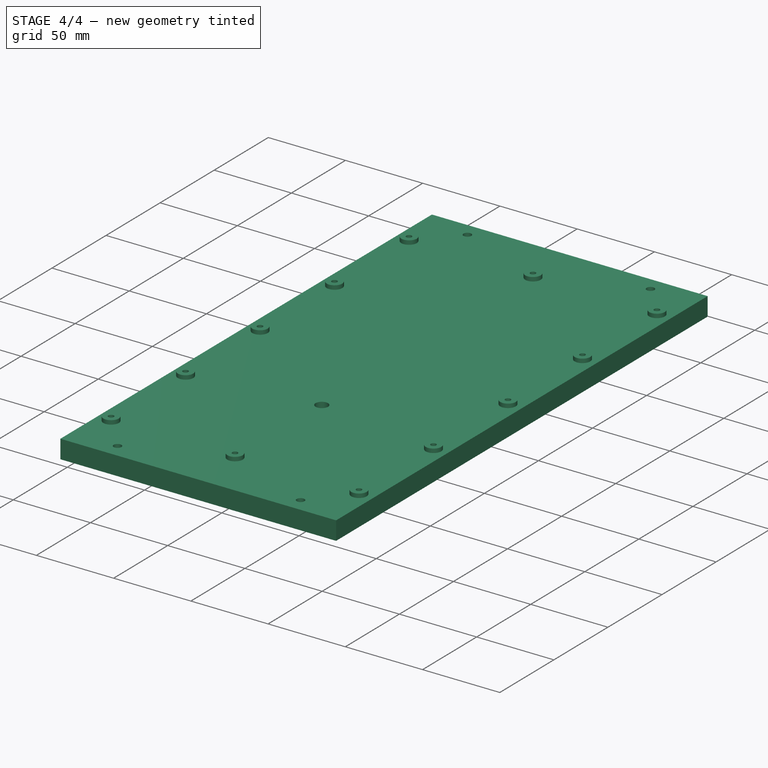
[diagram: stage 4 of 4 — iso view after this stage's code; geometry added in this stage tinted green]
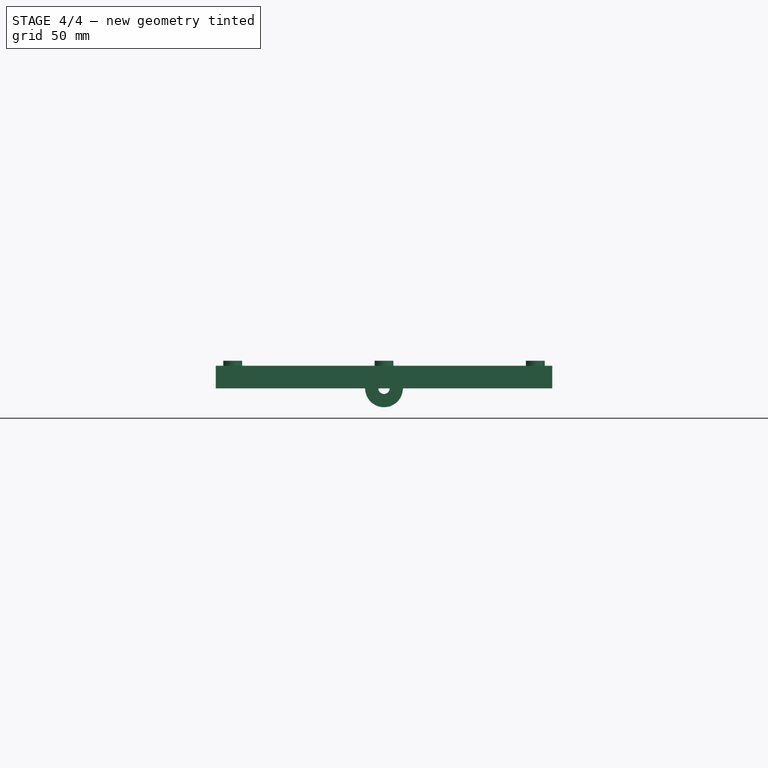
[diagram: stage 4 of 4 — front view after this stage's code; geometry added in this stage tinted green]
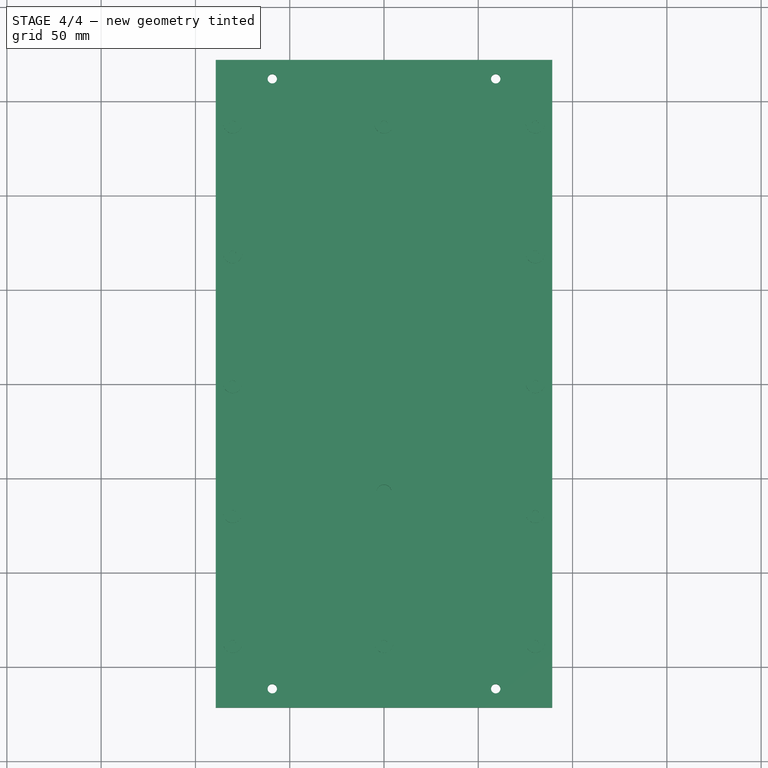
[diagram: stage 4 of 4 — top view after this stage's code; geometry added in this stage tinted green]
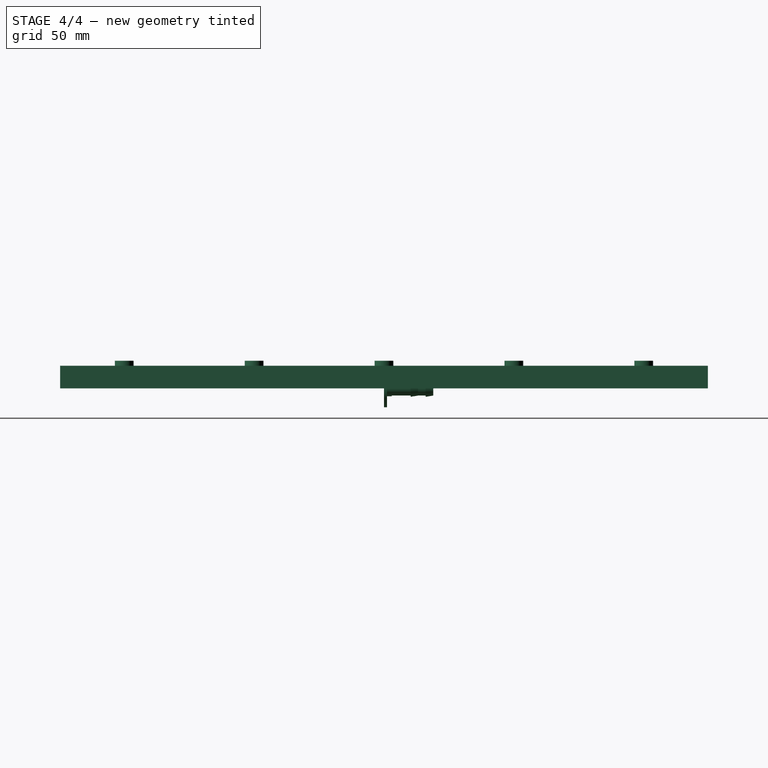
[diagram: stage 4 of 4 — right view after this stage's code; geometry added in this stage tinted green]
FEATURE [Part::Feature] Solid  label="LED1"
  Placement = pos=(57.5,57.5,1.6) rot=(0,0,1;0rad)
  shape: bbox 14 x 91 x 3 mm, 59 faces (baked)
  expr: .Placement.Base.x = Spreadsheet.SegmentCentreOffset
  expr: .Placement.Base.y = Spreadsheet.SegmentCentreOffset
FEATURE [Part::Feature] Solid001  label="LED2"
  Placement = pos=(57.5,-57.5,1.6) rot=(0,0,1;0rad)
  shape: bbox 14 x 91 x 3 mm, 59 faces (baked)
  expr: .Placement.Base.y = -Spreadsheet.SegmentCentreOffset
  expr: .Placement.Base.x = Spreadsheet.SegmentCentreOffset
FEATURE [App::DocumentObjectGroup] Parts
FEATURE [PartDesign::CoordinateSystem] LCS_Origin
  AttacherType = Attacher::AttachEngine3D
  MapMode = 2
  Support = -> [X_Axis]
FEATURE [App::FeaturePython] Variables  # WARN: FeaturePython — macro-defined, semantics opaque (R4)
  Type = App::PropertyContainer
FEATURE [App::DocumentObjectGroup] Constraints
FEATURE [App::DocumentObjectGroup] Configurations
FEATURE [Part::Feature] Solid002  label="LED0"
  Placement = pos=(0,115,1.6) rot=(0,0,1;1.5708rad)
  shape: bbox 91 x 14 x 3 mm, 59 faces (baked)
  expr: .Placement.Base.y = Spreadsheet.SegmentLength
FEATURE [Part::Feature] Solid003  label="LED3"
  Placement = pos=(0,-115,1.6) rot=(0,0,1;1.5708rad)
  shape: bbox 91 x 14 x 3 mm, 59 faces (baked)
  expr: .Placement.Base.y = -Spreadsheet.SegmentLength
FEATURE [Part::Feature] Solid004  label="LED4"
  Placement = pos=(-57.5,-57.5,1.6) rot=(0,0,1;0rad)
  shape: bbox 14 x 91 x 3 mm, 59 faces (baked)
  expr: .Placement.Base.x = -Spreadsheet.SegmentCentreOffset
  expr: .Placement.Base.y = -Spreadsheet.SegmentCentreOffset
FEATURE [Part::Feature] Solid005  label="LED5"
  Placement = pos=(-57.5,57.5,1.6) rot=(0,0,1;0rad)
  shape: bbox 14 x 91 x 3 mm, 59 faces (baked)
  expr: .Placement.Base.x = -Spreadsheet.SegmentCentreOffset
  expr: .Placement.Base.y = Spreadsheet.SegmentCentreOffset
FEATURE [Part::Feature] Solid006  label="LED6"
  Placement = pos=(0,0,1.6) rot=(0,0,1;1.5708rad)
  shape: bbox 91 x 14 x 3 mm, 59 faces (baked)
FEATURE [Spreadsheet::Sheet] Spreadsheet
  cells = A1=LED Module Height; B1=110; A2=Segment Height; B2(SegmentLength)=115; A3=Segment Centre Offset; B3(SegmentCentreOffset)==B2 / 2; A4=Segment Width; B4(SegmentWidth)==0.25 * B1; A5=SegmentWallThinkness; B5(SegmentWallThickness)=2.4; A6=SegmentWallSpacing; B6=3.6; A7=SegmentWallLength; B7(SegmentWallLength)==B2 - (2 * B5 + 2); A8=LED Module Hole Centre Offset; B8(LedHoleCentreOffset)=41.5; A9=DigitPillarRadius; B9(DigitPillarRadius)=5; A10=DigitSegmentPadding; B10(DigitSegmentPadding)=4
FEATURE [Sketcher::SketchObject] Sketch003  label="DiffuserPanel"
  FullyConstrained = true
  MapMode = 5
  Support = -> [XY_Plane016]
  expr: Constraints[8] = Spreadsheet.SegmentLength + Spreadsheet.SegmentWidth + Spreadsheet.DigitSegmentPadding * 2 - 1
  expr: Constraints[9] = 2 * Spreadsheet.SegmentLength + Spreadsheet.SegmentWidth + Spreadsheet.DigitSegmentPadding * 2 - 1
  sketch-geometry (4):
    g0: LineSegment StartX=-74.75 StartY=132.25 StartZ=0 EndX=74.75 EndY=132.25 EndZ=0
    g1: LineSegment StartX=74.75 StartY=132.25 StartZ=0 EndX=74.75 EndY=-132.25 EndZ=0
    g2: LineSegment StartX=74.75 StartY=-132.25 StartZ=0 EndX=-74.75 EndY=-132.25 EndZ=0
    g3: LineSegment StartX=-74.75 StartY=-132.25 StartZ=0 EndX=-74.75 EndY=132.25 EndZ=0
  constraints (10):
    c: Coincident(g0,g1)
    c: Coincident(g1,g2)
    c: Coincident(g2,g3)
    c: Coincident(g3,g0)
    c: Horizontal(g0)
    c: Vertical(g1)
    c: Symmetric(g0,g1,g-1)
    c: Symmetric(g2,g0,g-1)
    c: DistanceX(g0,g0) = 149.5
    c: DistanceY(g1,g1) = 264.5
FEATURE [PartDesign::Pad] Pad002  label="PadDiffuserPanel"
  Direction = (1,1,1)
  Length = 3
  Length2 = 100
  Profile = -> Sketch003
  Type = 0
FEATURE [Sketcher::SketchObject] Sketch006  label="DiffuserInset"
  FullyConstrained = true
  MapMode = 5
  Placement = pos=(0,0,14.6) rot=(0,0,1;0rad)
  Support = -> [Pad]
  expr: Constraints[9] = Spreadsheet.SegmentLength * 2 + Spreadsheet.SegmentWidth
  expr: Constraints[8] = Spreadsheet.SegmentWidth + Spreadsheet.SegmentLength
  sketch-geometry (4):
    g0: LineSegment StartX=-71.25 StartY=128.75 StartZ=0 EndX=71.25 EndY=128.75 EndZ=0
    g1: LineSegment StartX=71.25 StartY=128.75 StartZ=0 EndX=71.25 EndY=-128.75 EndZ=0
    g2: LineSegment StartX=71.25 StartY=-128.75 StartZ=0 EndX=-71.25 EndY=-128.75 EndZ=0
    g3: LineSegment StartX=-71.25 StartY=-128.75 StartZ=0 EndX=-71.25 EndY=128.75 EndZ=0
  constraints (10):
    c: Coincident(g0,g1)
    c: Coincident(g1,g2)
    c: Coincident(g2,g3)
    c: Coincident(g3,g0)
    c: Horizontal(g0)
    c: Vertical(g1)
    c: Symmetric(g0,g2,g-1)
    c: Symmetric(g0,g1,g-1)
    c: DistanceX(g0,g0) = 142.5
    c: DistanceY(g1,g1) = 257.5
FEATURE [PartDesign::Pocket] Pocket001  label="PocketDiffuserInset"
  BaseFeature = -> Pocket
  Length = 3
  Length2 = 100
  Profile = -> Sketch006
  Type = 0
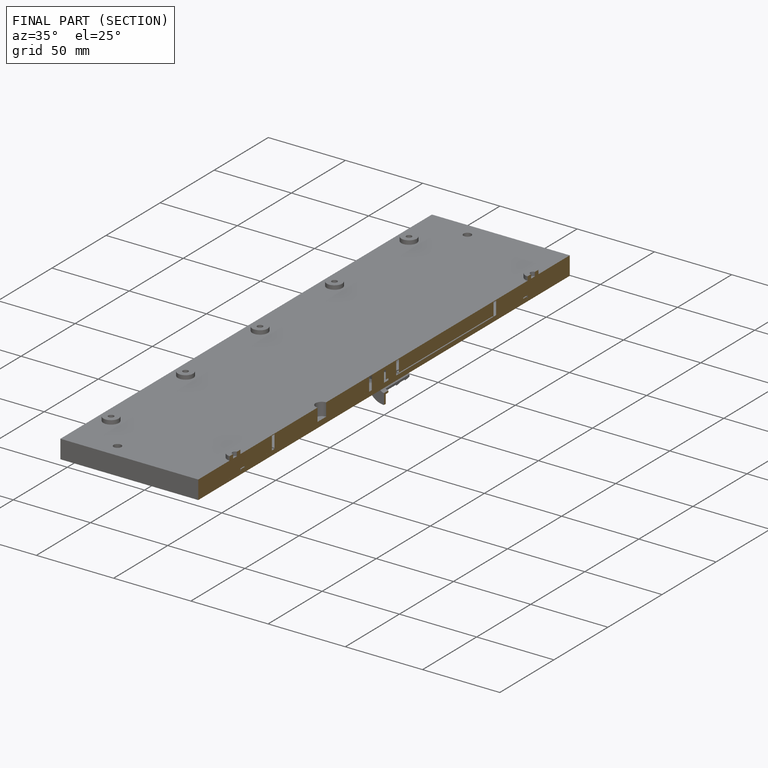
[diagram: finished part — half-section view (interior)]
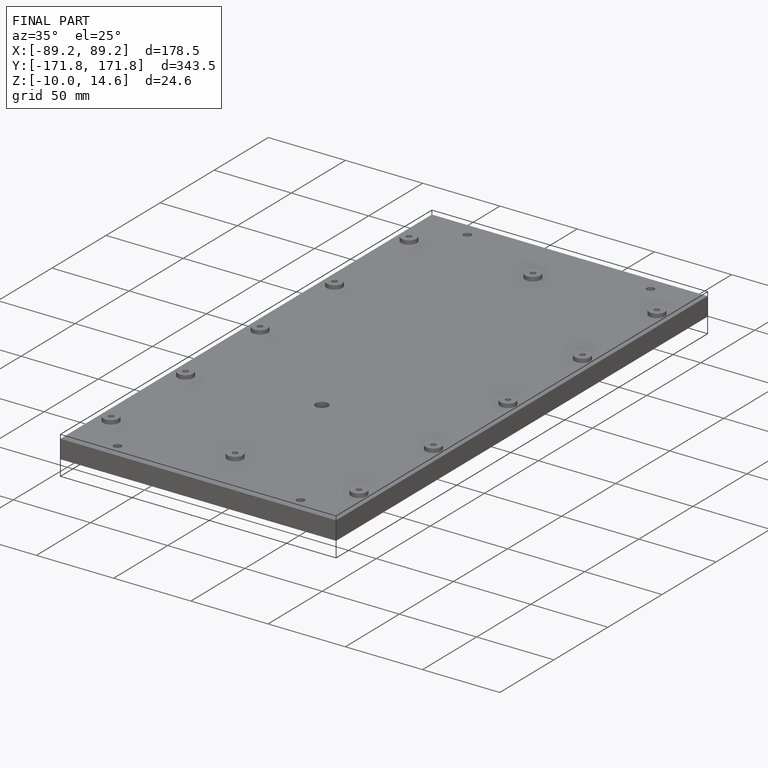
[diagram: finished part — iso view with bounding-box wireframe]
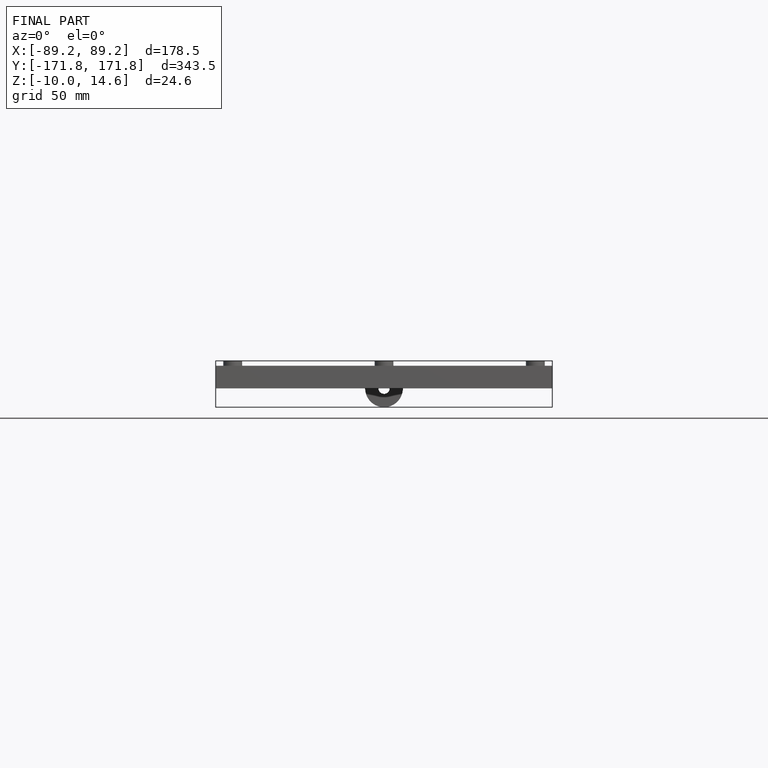
[diagram: finished part — front view with bounding-box wireframe]
